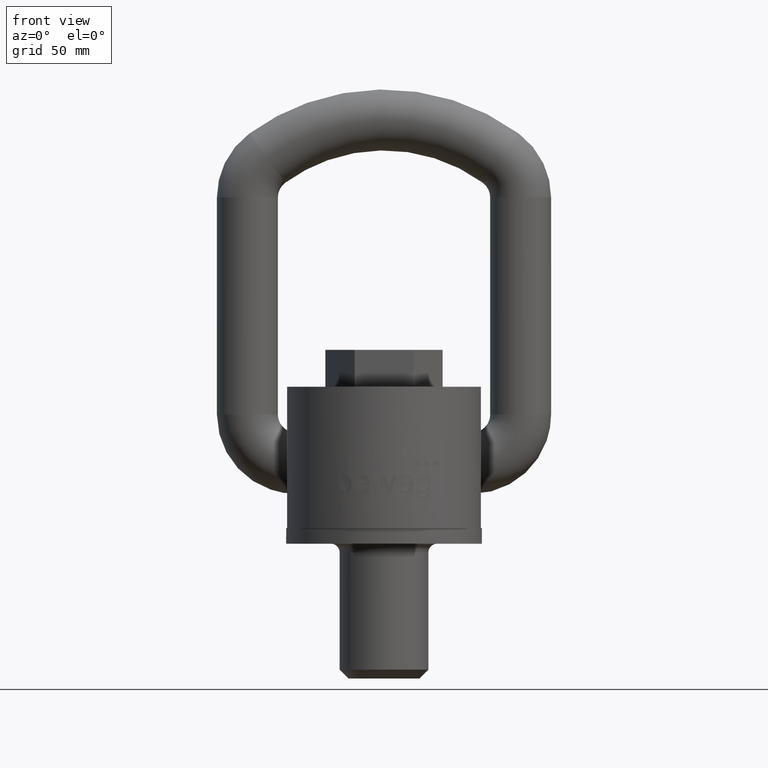
[diagram: clean part render]
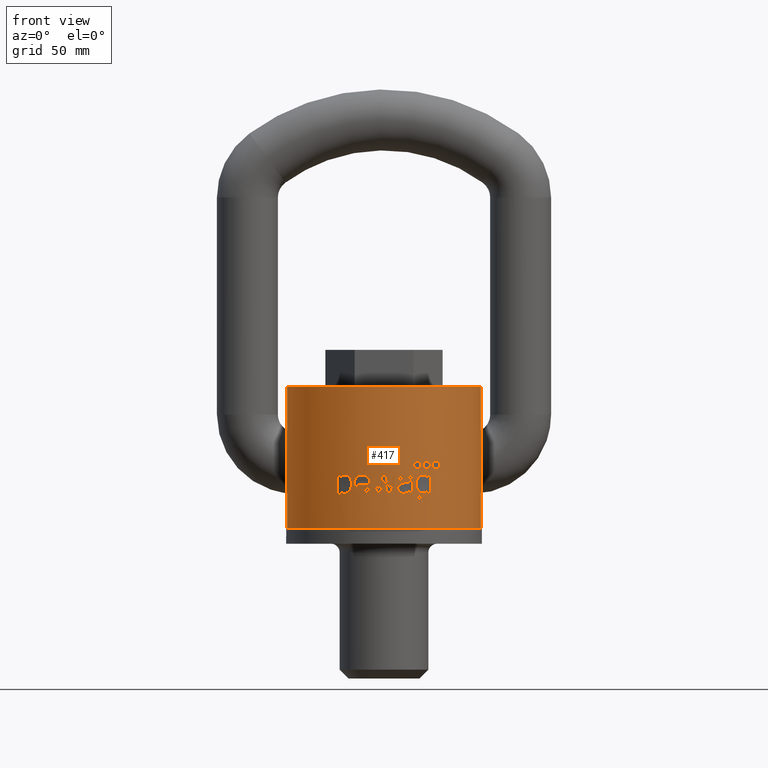
[diagram: same view with one face highlighted and labeled with its STEP entity id]
A machine part, front view. The second image highlights one B-rep face of the part: STEP entity #417.
In plain terms, the highlighted cylindrical surface (partial cylindrical patch) has radius 52.5 mm, axis along (0, -0, -1).
Its self-contained STEP definition (entity closure, byte-faithful):
#417=ADVANCED_FACE('',(#582,#583,#584,#585,#586,#587,#588,#589,#590),#551,
 .T.);
#551=CYLINDRICAL_SURFACE('',#2520,52.5);
#569=ELLIPSE('',#2495,52.9074304718792,52.5);
#570=ELLIPSE('',#2496,172.558000465431,52.5);
#571=ELLIPSE('',#2498,202.596774834767,52.5);
#572=ELLIPSE('',#2500,206.394196986981,52.5);
#573=ELLIPSE('',#2502,175.9850075065,52.5);
#574=ELLIPSE('',#2504,194.831448692737,52.5);
#575=ELLIPSE('',#2505,211.918340332556,52.5);
#576=ELLIPSE('',#2506,197.324263668669,52.5);
#577=ELLIPSE('',#2508,207.452381222408,52.5);
#578=ELLIPSE('',#2510,182.746897834467,52.5);
#579=ELLIPSE('',#2513,53.0938703991092,52.5);
#580=ELLIPSE('',#2514,52.9497851321274,52.5);
#581=ELLIPSE('',#2515,53.2237463379496,52.5);
#582=FACE_BOUND('',#639,.T.);
#583=FACE_BOUND('',#640,.T.);
#584=FACE_BOUND('',#641,.T.);
#585=FACE_BOUND('',#642,.T.);
#586=FACE_BOUND('',#643,.T.);
#587=FACE_BOUND('',#644,.T.);
#588=FACE_BOUND('',#645,.T.);
#589=FACE_BOUND('',#646,.T.);
#590=FACE_BOUND('',#647,.T.);
#639=EDGE_LOOP('',(#1155,#1156,#1157,#1158,#1159,#1160,#1161,#1162,#1163,
#1164));
#640=EDGE_LOOP('',(#1165,#1166,#1167,#1168,#1169,#1170,#1171,#1172,#1173));
#641=EDGE_LOOP('',(#1174,#1175,#1176,#1177,#1178,#1179,#1180,#1181,#1182,
#1183,#1184,#1185,#1186,#1187,#1188,#1189,#1190,#1191,#1192));
#642=EDGE_LOOP('',(#1193,#1194,#1195,#1196,#1197,#1198,#1199,#1200,#1201,
#1202,#1203,#1204,#1205,#1206,#1207,#1208,#1209));
#643=EDGE_LOOP('',(#1210,#1211,#1212,#1213,#1214,#1215,#1216,#1217,#1218,
#1219,#1220));
#644=EDGE_LOOP('',(#1221));
#645=EDGE_LOOP('',(#1222,#1223,#1224,#1225));
#646=EDGE_LOOP('',(#1226));
#647=EDGE_LOOP('',(#1227));
#805=LINE('',#3137,#937);
#806=LINE('',#3141,#938);
#807=LINE('',#3145,#939);
#808=LINE('',#3592,#940);
#809=LINE('',#3657,#941);
#810=LINE('',#3661,#942);
#937=VECTOR('',#2637,1.);
#938=VECTOR('',#2640,1.);
#939=VECTOR('',#2643,1.);
#940=VECTOR('',#2692,1.);
#941=VECTOR('',#2697,1.);
#942=VECTOR('',#2700,1.);
#1114=CIRCLE('',#2490,52.5);
#1115=CIRCLE('',#2491,52.5);
#1116=CIRCLE('',#2492,52.5);
#1117=CIRCLE('',#2493,52.5);
#1118=CIRCLE('',#2494,52.5);
#1119=CIRCLE('',#2497,52.5);
#1120=CIRCLE('',#2499,52.5);
#1121=CIRCLE('',#2501,52.5);
#1122=CIRCLE('',#2503,52.5);
#1123=CIRCLE('',#2507,52.5);
#1124=CIRCLE('',#2509,52.5);
#1125=CIRCLE('',#2511,52.5);
#1126=CIRCLE('',#2512,52.5);
#1127=CIRCLE('',#2516,52.5);
#1128=CIRCLE('',#2517,52.5);
#1129=CIRCLE('',#2518,52.5);
#1130=CIRCLE('',#2519,52.5);
#1155=ORIENTED_EDGE('',*,*,#2000,.F.);
#1156=ORIENTED_EDGE('',*,*,#2001,.F.);
#1157=ORIENTED_EDGE('',*,*,#2002,.F.);
#1158=ORIENTED_EDGE('',*,*,#2003,.F.);
#1159=ORIENTED_EDGE('',*,*,#2004,.F.);
#1160=ORIENTED_EDGE('',*,*,#2005,.F.);
#1161=ORIENTED_EDGE('',*,*,#2006,.F.);
#1162=ORIENTED_EDGE('',*,*,#2007,.F.);
#1163=ORIENTED_EDGE('',*,*,#2008,.F.);
#1164=ORIENTED_EDGE('',*,*,#2009,.F.);
#1165=ORIENTED_EDGE('',*,*,#2010,.F.);
#1166=ORIENTED_EDGE('',*,*,#2011,.F.);
#1167=ORIENTED_EDGE('',*,*,#2012,.F.);
#1168=ORIENTED_EDGE('',*,*,#2013,.F.);
#1169=ORIENTED_EDGE('',*,*,#2014,.F.);
#1170=ORIENTED_EDGE('',*,*,#2015,.F.);
#1171=ORIENTED_EDGE('',*,*,#2016,.F.);
#1172=ORIENTED_EDGE('',*,*,#2017,.F.);
#1173=ORIENTED_EDGE('',*,*,#2018,.F.);
#1174=ORIENTED_EDGE('',*,*,#2019,.F.);
#1175=ORIENTED_EDGE('',*,*,#2020,.F.);
#1176=ORIENTED_EDGE('',*,*,#2021,.F.);
#1177=ORIENTED_EDGE('',*,*,#2022,.F.);
#1178=ORIENTED_EDGE('',*,*,#2023,.F.);
#1179=ORIENTED_EDGE('',*,*,#2024,.F.);
#1180=ORIENTED_EDGE('',*,*,#2025,.F.);
#1181=ORIENTED_EDGE('',*,*,#2026,.F.);
#1182=ORIENTED_EDGE('',*,*,#2027,.F.);
#1183=ORIENTED_EDGE('',*,*,#2028,.F.);
#1184=ORIENTED_EDGE('',*,*,#2029,.F.);
#1185=ORIENTED_EDGE('',*,*,#2030,.F.);
#1186=ORIENTED_EDGE('',*,*,#2031,.F.);
#1187=ORIENTED_EDGE('',*,*,#2032,.F.);
#1188=ORIENTED_EDGE('',*,*,#2033,.F.);
#1189=ORIENTED_EDGE('',*,*,#2034,.F.);
#1190=ORIENTED_EDGE('',*,*,#2035,.F.);
#1191=ORIENTED_EDGE('',*,*,#2036,.F.);
#1192=ORIENTED_EDGE('',*,*,#2037,.F.);
#1193=ORIENTED_EDGE('',*,*,#2038,.F.);
#1194=ORIENTED_EDGE('',*,*,#2039,.F.);
#1195=ORIENTED_EDGE('',*,*,#2040,.F.);
#1196=ORIENTED_EDGE('',*,*,#2041,.F.);
#1197=ORIENTED_EDGE('',*,*,#2042,.F.);
#1198=ORIENTED_EDGE('',*,*,#2043,.F.);
#1199=ORIENTED_EDGE('',*,*,#2044,.F.);
#1200=ORIENTED_EDGE('',*,*,#2045,.F.);
#1201=ORIENTED_EDGE('',*,*,#2046,.F.);
#1202=ORIENTED_EDGE('',*,*,#2047,.F.);
#1203=ORIENTED_EDGE('',*,*,#2048,.F.);
#1204=ORIENTED_EDGE('',*,*,#2049,.F.);
#1205=ORIENTED_EDGE('',*,*,#2050,.F.);
#1206=ORIENTED_EDGE('',*,*,#2051,.F.);
#1207=ORIENTED_EDGE('',*,*,#2052,.F.);
#1208=ORIENTED_EDGE('',*,*,#2053,.F.);
#1209=ORIENTED_EDGE('',*,*,#2054,.F.);
#1210=ORIENTED_EDGE('',*,*,#2055,.F.);
#1211=ORIENTED_EDGE('',*,*,#2056,.F.);
#1212=ORIENTED_EDGE('',*,*,#2057,.F.);
#1213=ORIENTED_EDGE('',*,*,#2058,.F.);
#1214=ORIENTED_EDGE('',*,*,#2059,.F.);
#1215=ORIENTED_EDGE('',*,*,#2060,.F.);
#1216=ORIENTED_EDGE('',*,*,#2061,.F.);
#1217=ORIENTED_EDGE('',*,*,#2062,.F.);
#1218=ORIENTED_EDGE('',*,*,#2063,.F.);
#1219=ORIENTED_EDGE('',*,*,#2064,.F.);
#1220=ORIENTED_EDGE('',*,*,#2065,.F.);
#1221=ORIENTED_EDGE('',*,*,#2066,.T.);
#1222=ORIENTED_EDGE('',*,*,#2067,.F.);
#1223=ORIENTED_EDGE('',*,*,#2068,.F.);
#1224=ORIENTED_EDGE('',*,*,#2069,.F.);
#1225=ORIENTED_EDGE('',*,*,#2070,.F.);
#1226=ORIENTED_EDGE('',*,*,#2071,.T.);
#1227=ORIENTED_EDGE('',*,*,#2072,.T.);
#1785=VERTEX_POINT('',#3109);
#1786=VERTEX_POINT('',#3110);
#1787=VERTEX_POINT('',#3121);
#1788=VERTEX_POINT('',#3134);
#1789=VERTEX_POINT('',#3136);
#1790=VERTEX_POINT('',#3138);
#1791=VERTEX_POINT('',#3140);
#1792=VERTEX_POINT('',#3142);
#1793=VERTEX_POINT('',#3144);
#1794=VERTEX_POINT('',#3146);
#1795=VERTEX_POINT('',#3149);
#1796=VERTEX_POINT('',#3150);
#1797=VERTEX_POINT('',#3161);
#1798=VERTEX_POINT('',#3178);
#1799=VERTEX_POINT('',#3189);
#1800=VERTEX_POINT('',#3191);
#1801=VERTEX_POINT('',#3202);
#1802=VERTEX_POINT('',#3209);
#1803=VERTEX_POINT('',#3222);
#1804=VERTEX_POINT('',#3234);
#1805=VERTEX_POINT('',#3235);
#1806=VERTEX_POINT('',#3237);
#1807=VERTEX_POINT('',#3239);
#1808=VERTEX_POINT('',#3304);
#1809=VERTEX_POINT('',#3315);
#1810=VERTEX_POINT('',#3317);
#1811=VERTEX_POINT('',#3319);
#1812=VERTEX_POINT('',#3321);
#1813=VERTEX_POINT('',#3323);
#1814=VERTEX_POINT('',#3325);
#1815=VERTEX_POINT('',#3327);
#1816=VERTEX_POINT('',#3329);
#1817=VERTEX_POINT('',#3331);
#1818=VERTEX_POINT('',#3333);
#1819=VERTEX_POINT('',#3335);
#1820=VERTEX_POINT('',#3346);
#1821=VERTEX_POINT('',#3348);
#1822=VERTEX_POINT('',#3350);
#1823=VERTEX_POINT('',#3353);
#1824=VERTEX_POINT('',#3354);
#1825=VERTEX_POINT('',#3365);
#1826=VERTEX_POINT('',#3376);
#1827=VERTEX_POINT('',#3387);
#1828=VERTEX_POINT('',#3389);
#1829=VERTEX_POINT('',#3400);
#1830=VERTEX_POINT('',#3411);
#1831=VERTEX_POINT('',#3422);
#1832=VERTEX_POINT('',#3433);
#1833=VERTEX_POINT('',#3444);
#1834=VERTEX_POINT('',#3455);
#1835=VERTEX_POINT('',#3457);
#1836=VERTEX_POINT('',#3468);
#1837=VERTEX_POINT('',#3477);
#1838=VERTEX_POINT('',#3488);
#1839=VERTEX_POINT('',#3495);
#1840=VERTEX_POINT('',#3514);
#1841=VERTEX_POINT('',#3515);
#1842=VERTEX_POINT('',#3522);
#1843=VERTEX_POINT('',#3536);
#1844=VERTEX_POINT('',#3538);
#1845=VERTEX_POINT('',#3549);
#1846=VERTEX_POINT('',#3563);
#1847=VERTEX_POINT('',#3570);
#1848=VERTEX_POINT('',#3589);
#1849=VERTEX_POINT('',#3591);
#1850=VERTEX_POINT('',#3593);
#1851=VERTEX_POINT('',#3653);
#1852=VERTEX_POINT('',#3655);
#1853=VERTEX_POINT('',#3656);
#1854=VERTEX_POINT('',#3658);
#1855=VERTEX_POINT('',#3660);
#1856=VERTEX_POINT('',#3720);
#1857=VERTEX_POINT('',#3779);
#2000=EDGE_CURVE('',#1785,#1786,#2315,.T.);
#2001=EDGE_CURVE('',#1787,#1785,#2316,.T.);
#2002=EDGE_CURVE('',#1788,#1787,#2317,.T.);
#2003=EDGE_CURVE('',#1789,#1788,#1114,.T.);
#2004=EDGE_CURVE('',#1790,#1789,#805,.T.);
#2005=EDGE_CURVE('',#1791,#1790,#1115,.T.);
#2006=EDGE_CURVE('',#1792,#1791,#806,.T.);
#2007=EDGE_CURVE('',#1793,#1792,#1116,.T.);
#2008=EDGE_CURVE('',#1794,#1793,#807,.T.);
#2009=EDGE_CURVE('',#1786,#1794,#1117,.T.);
#2010=EDGE_CURVE('',#1795,#1796,#1118,.T.);
#2011=EDGE_CURVE('',#1797,#1795,#2318,.T.);
#2012=EDGE_CURVE('',#1798,#1797,#2319,.T.);
#2013=EDGE_CURVE('',#1799,#1798,#2320,.T.);
#2014=EDGE_CURVE('',#1800,#1799,#569,.T.);
#2015=EDGE_CURVE('',#1801,#1800,#2321,.T.);
#2016=EDGE_CURVE('',#1802,#1801,#2322,.T.);
#2017=EDGE_CURVE('',#1803,#1802,#2323,.T.);
#2018=EDGE_CURVE('',#1796,#1803,#2324,.T.);
#2019=EDGE_CURVE('',#1804,#1805,#570,.T.);
#2020=EDGE_CURVE('',#1806,#1804,#1119,.T.);
#2021=EDGE_CURVE('',#1807,#1806,#571,.T.);
#2022=EDGE_CURVE('',#1808,#1807,#2325,.T.);
#2023=EDGE_CURVE('',#1809,#1808,#2326,.T.);
#2024=EDGE_CURVE('',#1810,#1809,#1120,.T.);
#2025=EDGE_CURVE('',#1811,#1810,#572,.T.);
#2026=EDGE_CURVE('',#1812,#1811,#1121,.T.);
#2027=EDGE_CURVE('',#1813,#1812,#573,.T.);
#2028=EDGE_CURVE('',#1814,#1813,#1122,.T.);
#2029=EDGE_CURVE('',#1815,#1814,#574,.T.);
#2030=EDGE_CURVE('',#1816,#1815,#575,.T.);
#2031=EDGE_CURVE('',#1817,#1816,#576,.T.);
#2032=EDGE_CURVE('',#1818,#1817,#1123,.T.);
#2033=EDGE_CURVE('',#1819,#1818,#577,.T.);
#2034=EDGE_CURVE('',#1820,#1819,#2327,.T.);
#2035=EDGE_CURVE('',#1821,#1820,#1124,.T.);
#2036=EDGE_CURVE('',#1822,#1821,#578,.T.);
#2037=EDGE_CURVE('',#1805,#1822,#1125,.T.);
#2038=EDGE_CURVE('',#1823,#1824,#1126,.T.);
#2039=EDGE_CURVE('',#1825,#1823,#2328,.T.);
#2040=EDGE_CURVE('',#1826,#1825,#2329,.T.);
#2041=EDGE_CURVE('',#1827,#1826,#2330,.T.);
#2042=EDGE_CURVE('',#1828,#1827,#579,.T.);
#2043=EDGE_CURVE('',#1829,#1828,#2331,.T.);
#2044=EDGE_CURVE('',#1830,#1829,#2332,.T.);
#2045=EDGE_CURVE('',#1831,#1830,#2333,.T.);
#2046=EDGE_CURVE('',#1832,#1831,#2334,.T.);
#2047=EDGE_CURVE('',#1833,#1832,#2335,.T.);
#2048=EDGE_CURVE('',#1834,#1833,#2336,.T.);
#2049=EDGE_CURVE('',#1835,#1834,#580,.T.);
#2050=EDGE_CURVE('',#1836,#1835,#2337,.T.);
#2051=EDGE_CURVE('',#1837,#1836,#2338,.T.);
#2052=EDGE_CURVE('',#1838,#1837,#2339,.T.);
#2053=EDGE_CURVE('',#1839,#1838,#2340,.T.);
#2054=EDGE_CURVE('',#1824,#1839,#2341,.T.);
#2055=EDGE_CURVE('',#1840,#1841,#2342,.T.);
#2056=EDGE_CURVE('',#1842,#1840,#2343,.T.);
#2057=EDGE_CURVE('',#1843,#1842,#2344,.T.);
#2058=EDGE_CURVE('',#1844,#1843,#581,.T.);
#2059=EDGE_CURVE('',#1845,#1844,#2345,.T.);
#2060=EDGE_CURVE('',#1846,#1845,#2346,.T.);
#2061=EDGE_CURVE('',#1847,#1846,#2347,.T.);
#2062=EDGE_CURVE('',#1848,#1847,#2348,.T.);
#2063=EDGE_CURVE('',#1849,#1848,#1127,.T.);
#2064=EDGE_CURVE('',#1850,#1849,#808,.T.);
#2065=EDGE_CURVE('',#1841,#1850,#1128,.T.);
#2066=EDGE_CURVE('',#1851,#1851,#2349,.T.);
#2067=EDGE_CURVE('',#1852,#1853,#1129,.T.);
#2068=EDGE_CURVE('',#1854,#1852,#809,.T.);
#2069=EDGE_CURVE('',#1855,#1854,#1130,.T.);
#2070=EDGE_CURVE('',#1853,#1855,#810,.T.);
#2071=EDGE_CURVE('',#1856,#1856,#2350,.T.);
#2072=EDGE_CURVE('',#1857,#1857,#2351,.T.);
#2315=B_SPLINE_CURVE_WITH_KNOTS('',3,(#3099,#3100,#3101,#3102,#3103,#3104,
#3105,#3106,#3107,#3108),.UNSPECIFIED.,.F.,.F.,(4,3,3,4),(0.,0.391657797747273,
0.694208532104595,1.),.UNSPECIFIED.);
#2316=B_SPLINE_CURVE_WITH_KNOTS('',3,(#3111,#3112,#3113,#3114,#3115,#3116,
#3117,#3118,#3119,#3120),.UNSPECIFIED.,.F.,.F.,(4,3,3,4),(0.,0.352238037569722,
0.705837311240703,1.),.UNSPECIFIED.);
#2317=B_SPLINE_CURVE_WITH_KNOTS('',3,(#3122,#3123,#3124,#3125,#3126,#3127,
#3128,#3129,#3130,#3131,#3132,#3133),.UNSPECIFIED.,.F.,.F.,(4,2,2,2,2,4),
(0.,0.125,0.250000000000001,0.5,0.75,1.),.UNSPECIFIED.);
#2318=B_SPLINE_CURVE_WITH_KNOTS('',3,(#3151,#3152,#3153,#3154,#3155,#3156,
#3157,#3158,#3159,#3160),.UNSPECIFIED.,.F.,.F.,(4,3,3,4),(0.,0.247240170800069,
0.663841143719333,1.),.UNSPECIFIED.);
#2319=B_SPLINE_CURVE_WITH_KNOTS('',3,(#3162,#3163,#3164,#3165,#3166,#3167,
#3168,#3169,#3170,#3171,#3172,#3173,#3174,#3175,#3176,#3177),
 .UNSPECIFIED.,.F.,.F.,(4,3,3,3,3,4),(0.,0.198766169573462,0.39563469344666,
0.634969042156057,0.906976755551046,1.),.UNSPECIFIED.);
#2320=B_SPLINE_CURVE_WITH_KNOTS('',3,(#3179,#3180,#3181,#3182,#3183,#3184,
#3185,#3186,#3187,#3188),.UNSPECIFIED.,.F.,.F.,(4,3,3,4),(0.,0.291582744666722,
0.583827807706857,1.),.UNSPECIFIED.);
#2321=B_SPLINE_CURVE_WITH_KNOTS('',3,(#3192,#3193,#3194,#3195,#3196,#3197,
#3198,#3199,#3200,#3201),.UNSPECIFIED.,.F.,.F.,(4,3,3,4),(0.,0.279743626133195,
0.746666449623447,1.),.UNSPECIFIED.);
#2322=B_SPLINE_CURVE_WITH_KNOTS('',3,(#3203,#3204,#3205,#3206,#3207,#3208),
 .UNSPECIFIED.,.F.,.F.,(4,2,4),(0.,0.5,1.),.UNSPECIFIED.);
#2323=B_SPLINE_CURVE_WITH_KNOTS('',3,(#3210,#3211,#3212,#3213,#3214,#3215,
#3216,#3217,#3218,#3219,#3220,#3221),.UNSPECIFIED.,.F.,.F.,(4,2,2,2,2,4),
(0.,0.125,0.25,0.499999999999999,0.75,1.),.UNSPECIFIED.);
#2324=B_SPLINE_CURVE_WITH_KNOTS('',3,(#3223,#3224,#3225,#3226,#3227,#3228,
#3229,#3230,#3231,#3232),.UNSPECIFIED.,.F.,.F.,(4,3,3,4),(0.,0.326762048751423,
0.655781069521528,1.),.UNSPECIFIED.);
#2325=B_SPLINE_CURVE_WITH_KNOTS('',3,(#3240,#3241,#3242,#3243,#3244,#3245,
#3246,#3247,#3248,#3249,#3250,#3251,#3252,#3253,#3254,#3255,#3256,#3257,
#3258,#3259,#3260,#3261,#3262,#3263,#3264,#3265,#3266,#3267,#3268,#3269,
#3270,#3271,#3272,#3273,#3274,#3275,#3276,#3277,#3278,#3279,#3280,#3281,
#3282,#3283,#3284,#3285,#3286,#3287,#3288,#3289,#3290,#3291,#3292,#3293,
#3294,#3295,#3296,#3297,#3298,#3299,#3300,#3301,#3302,#3303),
 .UNSPECIFIED.,.F.,.F.,(4,3,3,3,3,3,3,3,3,3,3,3,3,3,3,3,3,3,3,3,3,4),(0.,
0.499553315865317,0.749371457656778,0.834029702781509,0.889946161526297,
0.926899979168894,0.951339487482488,0.967517619891249,0.978239997821739,
0.985357925747822,0.990093337357624,0.99325301181144,0.995369807495447,
0.99679578552025,0.997763616068196,0.998427273316663,0.998888982307846,
0.999371387633675,0.999590041183286,0.999773233074735,0.999908554321398,
1.),.UNSPECIFIED.);
#2326=B_SPLINE_CURVE_WITH_KNOTS('',3,(#3305,#3306,#3307,#3308,#3309,#3310,
#3311,#3312,#3313,#3314),.UNSPECIFIED.,.F.,.F.,(4,3,3,4),(0.,0.133710786362348,
0.6622594282057,1.),.UNSPECIFIED.);
#2327=B_SPLINE_CURVE_WITH_KNOTS('',3,(#3336,#3337,#3338,#3339,#3340,#3341,
#3342,#3343,#3344,#3345),.UNSPECIFIED.,.F.,.F.,(4,3,3,4),(0.,0.284451124598489,
0.642221045653069,1.),.UNSPECIFIED.);
#2328=B_SPLINE_CURVE_WITH_KNOTS('',3,(#3355,#3356,#3357,#3358,#3359,#3360,
#3361,#3362,#3363,#3364),.UNSPECIFIED.,.F.,.F.,(4,3,3,4),(0.,0.298107772476783,
0.596459384136428,1.),.UNSPECIFIED.);
#2329=B_SPLINE_CURVE_WITH_KNOTS('',3,(#3366,#3367,#3368,#3369,#3370,#3371,
#3372,#3373,#3374,#3375),.UNSPECIFIED.,.F.,.F.,(4,2,2,2,4),(0.,0.25,0.5,
0.75,1.),.UNSPECIFIED.);
#2330=B_SPLINE_CURVE_WITH_KNOTS('',3,(#3377,#3378,#3379,#3380,#3381,#3382,
#3383,#3384,#3385,#3386),.UNSPECIFIED.,.F.,.F.,(4,3,3,4),(0.,0.336609162967316,
0.658853350552496,1.),.UNSPECIFIED.);
#2331=B_SPLINE_CURVE_WITH_KNOTS('',3,(#3390,#3391,#3392,#3393,#3394,#3395,
#3396,#3397,#3398,#3399),.UNSPECIFIED.,.F.,.F.,(4,3,3,4),(0.,0.29661276827301,
0.593035536686832,1.),.UNSPECIFIED.);
#2332=B_SPLINE_CURVE_WITH_KNOTS('',3,(#3401,#3402,#3403,#3404,#3405,#3406,
#3407,#3408,#3409,#3410),.UNSPECIFIED.,.F.,.F.,(4,3,3,4),(0.,0.354196373045428,
0.676989757518119,1.),.UNSPECIFIED.);
#2333=B_SPLINE_CURVE_WITH_KNOTS('',3,(#3412,#3413,#3414,#3415,#3416,#3417,
#3418,#3419,#3420,#3421),.UNSPECIFIED.,.F.,.F.,(4,3,3,4),(0.,0.284062316983172,
0.568435846295681,1.),.UNSPECIFIED.);
#2334=B_SPLINE_CURVE_WITH_KNOTS('',3,(#3423,#3424,#3425,#3426,#3427,#3428,
#3429,#3430,#3431,#3432),.UNSPECIFIED.,.F.,.F.,(4,3,3,4),(0.,0.294807138526077,
0.590298925498013,1.),.UNSPECIFIED.);
#2335=B_SPLINE_CURVE_WITH_KNOTS('',3,(#3434,#3435,#3436,#3437,#3438,#3439,
#3440,#3441,#3442,#3443),.UNSPECIFIED.,.F.,.F.,(4,3,3,4),(0.,0.278855867610482,
0.735722394139003,1.),.UNSPECIFIED.);
#2336=B_SPLINE_CURVE_WITH_KNOTS('',3,(#3445,#3446,#3447,#3448,#3449,#3450,
#3451,#3452,#3453,#3454),.UNSPECIFIED.,.F.,.F.,(4,3,3,4),(0.,0.324752376652679,
0.768673925460942,1.),.UNSPECIFIED.);
#2337=B_SPLINE_CURVE_WITH_KNOTS('',3,(#3458,#3459,#3460,#3461,#3462,#3463,
#3464,#3465,#3466,#3467),.UNSPECIFIED.,.F.,.F.,(4,3,3,4),(0.,0.276746719904197,
0.659623398338811,1.),.UNSPECIFIED.);
#2338=B_SPLINE_CURVE_WITH_KNOTS('',3,(#3469,#3470,#3471,#3472,#3473,#3474,
#3475,#3476),.UNSPECIFIED.,.F.,.F.,(4,2,2,4),(0.,0.25,0.499999999999999,
1.),.UNSPECIFIED.);
#2339=B_SPLINE_CURVE_WITH_KNOTS('',3,(#3478,#3479,#3480,#3481,#3482,#3483,
#3484,#3485,#3486,#3487),.UNSPECIFIED.,.F.,.F.,(4,3,3,4),(0.,0.260453290197951,
0.65111740460325,1.),.UNSPECIFIED.);
#2340=B_SPLINE_CURVE_WITH_KNOTS('',3,(#3489,#3490,#3491,#3492,#3493,#3494),
 .UNSPECIFIED.,.F.,.F.,(4,2,4),(0.,0.5,1.),.UNSPECIFIED.);
#2341=B_SPLINE_CURVE_WITH_KNOTS('',3,(#3496,#3497,#3498,#3499,#3500,#3501,
#3502,#3503,#3504,#3505),.UNSPECIFIED.,.F.,.F.,(4,3,3,4),(0.,0.264702455054215,
0.529532191004731,1.),.UNSPECIFIED.);
#2342=B_SPLINE_CURVE_WITH_KNOTS('',3,(#3506,#3507,#3508,#3509,#3510,#3511,
#3512,#3513),.UNSPECIFIED.,.F.,.F.,(4,2,2,4),(0.,0.25,0.5,1.),
 .UNSPECIFIED.);
#2343=B_SPLINE_CURVE_WITH_KNOTS('',3,(#3516,#3517,#3518,#3519,#3520,#3521),
 .UNSPECIFIED.,.F.,.F.,(4,2,4),(0.,0.5,1.),.UNSPECIFIED.);
#2344=B_SPLINE_CURVE_WITH_KNOTS('',3,(#3523,#3524,#3525,#3526,#3527,#3528,
#3529,#3530,#3531,#3532,#3533,#3534,#3535),.UNSPECIFIED.,.F.,.F.,(4,3,3,
3,4),(0.,0.401043475483811,0.633320924333604,0.866741825314156,1.),
 .UNSPECIFIED.);
#2345=B_SPLINE_CURVE_WITH_KNOTS('',3,(#3539,#3540,#3541,#3542,#3543,#3544,
#3545,#3546,#3547,#3548),.UNSPECIFIED.,.F.,.F.,(4,3,3,4),(0.,0.256741034385977,
0.614734922507131,1.),.UNSPECIFIED.);
#2346=B_SPLINE_CURVE_WITH_KNOTS('',3,(#3550,#3551,#3552,#3553,#3554,#3555,
#3556,#3557,#3558,#3559,#3560,#3561,#3562),.UNSPECIFIED.,.F.,.F.,(4,3,3,
3,4),(0.,0.199350171071207,0.498071015390928,0.843112996930529,1.),
 .UNSPECIFIED.);
#2347=B_SPLINE_CURVE_WITH_KNOTS('',3,(#3564,#3565,#3566,#3567,#3568,#3569),
 .UNSPECIFIED.,.F.,.F.,(4,2,4),(0.,0.5,1.),.UNSPECIFIED.);
#2348=B_SPLINE_CURVE_WITH_KNOTS('',3,(#3571,#3572,#3573,#3574,#3575,#3576,
#3577,#3578,#3579,#3580,#3581,#3582,#3583,#3584,#3585,#3586,#3587,#3588),
 .UNSPECIFIED.,.F.,.F.,(4,2,2,2,2,2,2,2,4),(0.,0.125,0.25,0.375,0.5,0.625,
0.75,0.875,1.),.UNSPECIFIED.);
#2349=B_SPLINE_CURVE_WITH_KNOTS('',3,(#3595,#3596,#3597,#3598,#3599,#3600,
#3601,#3602,#3603,#3604,#3605,#3606,#3607,#3608,#3609,#3610,#3611,#3612,
#3613,#3614,#3615,#3616,#3617,#3618,#3619,#3620,#3621,#3622,#3623,#3624,
#3625,#3626,#3627,#3628,#3629,#3630,#3631,#3632,#3633,#3634,#3635,#3636,
#3637,#3638,#3639,#3640,#3641,#3642,#3643,#3644,#3645,#3646,#3647,#3648,
#3649,#3650,#3651,#3652),.UNSPECIFIED.,.T.,.F.,(1,3,3,3,3,3,3,3,3,3,3,3,
3,3,3,3,3,3,3,3,3,1),(-0.0367073868415182,0.,0.0609914840100625,0.122231249399368,
0.179301292083765,0.230755369736954,0.278391120314942,0.324878189726589,
0.372681240418362,0.423792491215209,0.479527479500674,0.539959743675108,
0.603004205015672,0.664124531326778,0.718757726555895,0.766536662648828,
0.811206380762681,0.857057487616174,0.907225610016424,0.963292613158482,
1.,1.06099148401006),.UNSPECIFIED.);
#2350=B_SPLINE_CURVE_WITH_KNOTS('',3,(#3662,#3663,#3664,#3665,#3666,#3667,
#3668,#3669,#3670,#3671,#3672,#3673,#3674,#3675,#3676,#3677,#3678,#3679,
#3680,#3681,#3682,#3683,#3684,#3685,#3686,#3687,#3688,#3689,#3690,#3691,
#3692,#3693,#3694,#3695,#3696,#3697,#3698,#3699,#3700,#3701,#3702,#3703,
#3704,#3705,#3706,#3707,#3708,#3709,#3710,#3711,#3712,#3713,#3714,#3715,
#3716,#3717,#3718,#3719),.UNSPECIFIED.,.T.,.F.,(1,3,3,3,3,3,3,3,3,3,3,3,
3,3,3,3,3,3,3,3,3,1),(-0.0367197482967928,0.,0.057624570693958,0.115380338516388,
0.170999496159536,0.22356569032424,0.273920264410147,0.323453498183324,
0.373593188642526,0.425570256117129,0.480210313262633,0.537583476956382,
0.596550106951982,0.654679211305302,0.709389457177727,0.759995746809845,
0.808271178746387,0.856951409014801,0.908279432979368,0.963280251703207,
1.,1.05762457069396),.UNSPECIFIED.);
#2351=B_SPLINE_CURVE_WITH_KNOTS('',3,(#3721,#3722,#3723,#3724,#3725,#3726,
#3727,#3728,#3729,#3730,#3731,#3732,#3733,#3734,#3735,#3736,#3737,#3738,
#3739,#3740,#3741,#3742,#3743,#3744,#3745,#3746,#3747,#3748,#3749,#3750,
#3751,#3752,#3753,#3754,#3755,#3756,#3757,#3758,#3759,#3760,#3761,#3762,
#3763,#3764,#3765,#3766,#3767,#3768,#3769,#3770,#3771,#3772,#3773,#3774,
#3775,#3776,#3777,#3778),.UNSPECIFIED.,.T.,.F.,(1,3,3,3,3,3,3,3,3,3,3,3,
3,3,3,3,3,3,3,3,3,1),(-0.065995406742674,0.,0.0748415571720553,0.141559223989638,
0.189406139175088,0.237532672015933,0.28131226716205,0.323847856577255,
0.368697963810671,0.418673756299005,0.475805103754143,0.540469776596686,
0.609516497803679,0.662909236118808,0.707889954346456,0.753174917817908,
0.793903464076126,0.834776206969873,0.880423710865826,0.934004593257326,
1.,1.07484155717206),.UNSPECIFIED.);
#2490=AXIS2_PLACEMENT_3D('',#3135,#2635,#2636);
#2491=AXIS2_PLACEMENT_3D('',#3139,#2638,#2639);
#2492=AXIS2_PLACEMENT_3D('',#3143,#2641,#2642);
#2493=AXIS2_PLACEMENT_3D('',#3147,#2644,#2645);
#2494=AXIS2_PLACEMENT_3D('',#3148,#2646,#2647);
#2495=AXIS2_PLACEMENT_3D('',#3190,#2648,#2649);
#2496=AXIS2_PLACEMENT_3D('',#3233,#2650,#2651);
#2497=AXIS2_PLACEMENT_3D('',#3236,#2652,#2653);
#2498=AXIS2_PLACEMENT_3D('',#3238,#2654,#2655);
#2499=AXIS2_PLACEMENT_3D('',#3316,#2656,#2657);
#2500=AXIS2_PLACEMENT_3D('',#3318,#2658,#2659);
#2501=AXIS2_PLACEMENT_3D('',#3320,#2660,#2661);
#2502=AXIS2_PLACEMENT_3D('',#3322,#2662,#2663);
#2503=AXIS2_PLACEMENT_3D('',#3324,#2664,#2665);
#2504=AXIS2_PLACEMENT_3D('',#3326,#2666,#2667);
#2505=AXIS2_PLACEMENT_3D('',#3328,#2668,#2669);
#2506=AXIS2_PLACEMENT_3D('',#3330,#2670,#2671);
#2507=AXIS2_PLACEMENT_3D('',#3332,#2672,#2673);
#2508=AXIS2_PLACEMENT_3D('',#3334,#2674,#2675);
#2509=AXIS2_PLACEMENT_3D('',#3347,#2676,#2677);
#2510=AXIS2_PLACEMENT_3D('',#3349,#2678,#2679);
#2511=AXIS2_PLACEMENT_3D('',#3351,#2680,#2681);
#2512=AXIS2_PLACEMENT_3D('',#3352,#2682,#2683);
#2513=AXIS2_PLACEMENT_3D('',#3388,#2684,#2685);
#2514=AXIS2_PLACEMENT_3D('',#3456,#2686,#2687);
#2515=AXIS2_PLACEMENT_3D('',#3537,#2688,#2689);
#2516=AXIS2_PLACEMENT_3D('',#3590,#2690,#2691);
#2517=AXIS2_PLACEMENT_3D('',#3594,#2693,#2694);
#2518=AXIS2_PLACEMENT_3D('',#3654,#2695,#2696);
#2519=AXIS2_PLACEMENT_3D('',#3659,#2698,#2699);
#2520=AXIS2_PLACEMENT_3D('',#3780,#2701,#2702);
#2635=DIRECTION('',(0.,0.,1.));
#2636=DIRECTION('',(-1.,0.,0.));
#2637=DIRECTION('',(0.,3.62817981903646E-16,1.));
#2638=DIRECTION('',(0.,0.,1.));
#2639=DIRECTION('',(-1.,0.,0.));
#2640=DIRECTION('',(0.,-3.62817981903646E-16,-1.));
#2641=DIRECTION('',(0.,0.,-1.));
#2642=DIRECTION('',(1.,0.,0.));
#2643=DIRECTION('',(0.,3.62817981903646E-16,1.));
#2644=DIRECTION('',(1.0135024756664E-13,0.,-1.));
#2645=DIRECTION('',(1.,0.,1.01373935700892E-13));
#2646=DIRECTION('',(0.,0.,1.));
#2647=DIRECTION('',(-1.,0.,0.));
#2648=DIRECTION('',(-0.123864170013731,4.93038065763132E-32,-0.992299182397532));
#2649=DIRECTION('',(0.992299182397532,-2.92916007803892E-15,-0.123864170013731));
#2650=DIRECTION('',(-0.952593648183112,0.,0.304245528218887));
#2651=DIRECTION('',(-0.304245528218887,-3.80873820222979E-16,-0.952593648183112));
#2652=DIRECTION('',(0.,0.,1.));
#2653=DIRECTION('',(-1.,0.,0.));
#2654=DIRECTION('',(0.965840998800877,0.,0.259135418334362));
#2655=DIRECTION('',(0.259135418334362,-3.75649804009248E-16,-0.965840998800877));
#2656=DIRECTION('',(0.,0.,1.));
#2657=DIRECTION('',(-1.,0.,0.));
#2658=DIRECTION('',(-0.96710760287855,0.,0.254367616756742));
#2659=DIRECTION('',(-0.254367616756742,-3.75157821967003E-16,-0.96710760287855));
#2660=DIRECTION('',(0.,0.,1.));
#2661=DIRECTION('',(-1.,0.,0.));
#2662=DIRECTION('',(0.954465641275027,1.23259516440783E-32,0.298320866895784));
#2663=DIRECTION('',(0.298320866895784,-3.80126812547148E-16,-0.954465641275027));
#2664=DIRECTION('',(0.,0.,-1.));
#2665=DIRECTION('',(1.,0.,0.));
#2666=DIRECTION('',(-0.963010551756508,0.,-0.269463684391098));
#2667=DIRECTION('',(0.269463684391098,-3.76753900818506E-16,-0.963010551756508));
#2668=DIRECTION('',(0.968827338219047,0.,-0.24773693450795));
#2669=DIRECTION('',(-0.24773693450795,-3.7449189096026E-16,-0.968827338219047));
#2670=DIRECTION('',(0.963956601090742,-1.23259516440783E-32,-0.266059525696007));
#2671=DIRECTION('',(-0.266059525696007,-3.76384145814353E-16,-0.963956601090742));
#2672=DIRECTION('',(0.,0.,-1.));
#2673=DIRECTION('',(1.,0.,0.));
#2674=DIRECTION('',(-0.967447937590639,0.,-0.25307012477102));
#2675=DIRECTION('',(0.25307012477102,-3.75025846669557E-16,-0.967447937590639));
#2676=DIRECTION('',(0.,0.,-1.));
#2677=DIRECTION('',(1.,0.,0.));
#2678=DIRECTION('',(0.957845874951683,1.23259516440783E-32,-0.287282578375447));
#2679=DIRECTION('',(-0.287282578375447,-3.78785346778204E-16,-0.957845874951683));
#2680=DIRECTION('',(0.,0.,-1.));
#2681=DIRECTION('',(1.,0.,0.));
#2682=DIRECTION('',(0.,0.,1.));
#2683=DIRECTION('',(-1.,0.,0.));
#2684=DIRECTION('',(0.149149158822097,-4.93038065763132E-32,-0.988814708842188));
#2685=DIRECTION('',(-0.988814708842188,-2.43258483500004E-15,-0.149149158822097));
#2686=DIRECTION('',(0.130065224599901,0.,0.991505439899236));
#2687=DIRECTION('',(0.991505439899236,-2.78950797970576E-15,-0.130065224599901));
#2688=DIRECTION('',(-0.164351632031852,0.,-0.986401815209434));
#2689=DIRECTION('',(0.986401815209434,-2.20757151856776E-15,-0.164351632031852));
#2690=DIRECTION('',(-1.01299546985865E-13,0.,-1.));
#2691=DIRECTION('',(1.,0.,-1.01307850997046E-13));
#2692=DIRECTION('',(0.,-3.62817981903646E-16,-1.));
#2693=DIRECTION('',(0.,0.,-1.));
#2694=DIRECTION('',(1.,0.,0.));
#2695=DIRECTION('',(0.,1.39066760246747E-16,-1.));
#2696=DIRECTION('',(0.,-1.,-1.39066760246747E-16));
#2697=DIRECTION('',(0.,-3.62817981903646E-16,-1.));
#2698=DIRECTION('',(0.,0.,1.));
#2699=DIRECTION('',(-1.,0.,0.));
#2700=DIRECTION('',(0.,3.62817981903646E-16,1.));
#2701=DIRECTION('',(0.,-3.62817981903646E-16,-1.));
#2702=DIRECTION('',(0.,1.,-2.64338815386942E-16));
#3099=CARTESIAN_POINT('',(-21.3248256533137,-58.4739701385634,28.7136415963162));
#3100=CARTESIAN_POINT('',(-21.7136736125525,-58.3011240115395,28.7136415963162));
#3101=CARTESIAN_POINT('',(-22.1082543752647,-58.1196947995924,28.6532261377601));
#3102=CARTESIAN_POINT('',(-22.4700416359899,-57.9483638166468,28.5088855984401));
#3103=CARTESIAN_POINT('',(-22.7503862750065,-57.8156014787194,28.3970378337896));
#3104=CARTESIAN_POINT('',(-23.0165296189898,-57.6863816576468,28.2311575405621));
#3105=CARTESIAN_POINT('',(-23.2455658690525,-57.5732797606832,28.0226407917982));
#3106=CARTESIAN_POINT('',(-23.4774390801042,-57.4587769253555,27.8115412471597));
#3107=CARTESIAN_POINT('',(-23.6770568866137,-57.3580852541559,27.5529702010253));
#3108=CARTESIAN_POINT('',(-23.83933997324,-57.2753767450384,27.273215656178));
#3109=CARTESIAN_POINT('',(-21.3248256533137,-58.4739701385634,28.7136415963162));
#3110=CARTESIAN_POINT('',(-23.83933997324,-57.2753767450384,27.273215656178));
#3111=CARTESIAN_POINT('',(-18.5862457009187,-59.5999131439668,27.3571565617805));
#3112=CARTESIAN_POINT('',(-18.8160524488364,-59.5129222633922,27.6659387175808));
#3113=CARTESIAN_POINT('',(-19.0926375584538,-59.4063576696897,27.9425468875619));
#3114=CARTESIAN_POINT('',(-19.4017016138664,-59.2834395516193,28.1549039461551));
#3115=CARTESIAN_POINT('',(-19.7116722425835,-59.160160879539,28.3678839087612));
#3116=CARTESIAN_POINT('',(-20.0615417786316,-59.0173521174825,28.5204629447159));
#3117=CARTESIAN_POINT('',(-20.4170597956241,-58.8672789114905,28.608354119278));
#3118=CARTESIAN_POINT('',(-20.7149570062609,-58.7415289148109,28.6820002764071));
#3119=CARTESIAN_POINT('',(-21.0217839779745,-58.6086746642391,28.7136415963162));
#3120=CARTESIAN_POINT('',(-21.3248256533137,-58.4739701385634,28.7136415963162));
#3121=CARTESIAN_POINT('',(-18.5862457009187,-59.5999131439668,27.3571565617805));
#3122=CARTESIAN_POINT('',(-23.6992989529471,-57.3464857714946,19.9938603223331));
#3123=CARTESIAN_POINT('',(-23.3745256892939,-57.5107862209409,19.530482296458));
#3124=CARTESIAN_POINT('',(-22.9484170082235,-57.7220176718393,19.1615911664445));
#3125=CARTESIAN_POINT('',(-21.9602107629413,-58.1895999084708,18.7659457661391));
#3126=CARTESIAN_POINT('',(-21.4122461538425,-58.438524162556,18.7336023914585));
#3127=CARTESIAN_POINT('',(-19.81581883675,-59.1305342431682,18.9810027528666));
#3128=CARTESIAN_POINT('',(-18.8536218857128,-59.5015660912304,19.7419499629016));
#3129=CARTESIAN_POINT('',(-17.7248342422348,-59.9210763610825,21.7306558379851));
#3130=CARTESIAN_POINT('',(-17.5535852551876,-59.9785104529975,22.9430513313638));
#3131=CARTESIAN_POINT('',(-17.6228737070105,-59.9538742088553,25.2546067310936));
#3132=CARTESIAN_POINT('',(-17.90017408402,-59.8596181988966,26.4310218499401));
#3133=CARTESIAN_POINT('',(-18.5862457009187,-59.5999131439667,27.3571565617805));
#3134=CARTESIAN_POINT('',(-23.6992989529471,-57.3464857714946,19.9938603223331));
#3135=CARTESIAN_POINT('',(0.,-10.5,19.9938603223331));
#3136=CARTESIAN_POINT('',(-23.7397552476984,-57.3259972747979,19.9938603223331));
#3137=CARTESIAN_POINT('',(-23.7397552476984,-57.3259972747979,76.5));
#3138=CARTESIAN_POINT('',(-23.7397552476984,-57.3259972747979,15.3468917881811));
#3139=CARTESIAN_POINT('',(0.,-10.5,15.3468917881811));
#3140=CARTESIAN_POINT('',(-25.2335261308229,-56.5382358372373,15.3468917881811));
#3141=CARTESIAN_POINT('',(-25.2335261308229,-56.5382358372372,76.5));
#3142=CARTESIAN_POINT('',(-25.2335261308229,-56.5382358372373,28.4987528779739));
#3143=CARTESIAN_POINT('',(0.,-10.5,28.4987528779739));
#3144=CARTESIAN_POINT('',(-23.8735722226449,-57.2579142961933,28.4987528779739));
#3145=CARTESIAN_POINT('',(-23.8735722226449,-57.2579142961933,76.5));
#3146=CARTESIAN_POINT('',(-23.8735722226449,-57.2579142961933,27.273215656178));
#3147=CARTESIAN_POINT('',(0.,-10.5,27.2732156561805));
#3148=CARTESIAN_POINT('',(0.,-10.5,23.341423637759));
#3149=CARTESIAN_POINT('',(-14.5618432372029,-60.9400904195772,23.341423637759));
#3150=CARTESIAN_POINT('',(-7.50599298755426,-62.4606588610151,23.341423637759));
#3151=CARTESIAN_POINT('',(-13.6698772622473,-61.189096023061,20.9339984650806));
#3152=CARTESIAN_POINT('',(-13.8174558028307,-61.1492969204019,21.0884990680846));
#3153=CARTESIAN_POINT('',(-13.9468986504577,-61.1136995248988,21.263315901418));
#3154=CARTESIAN_POINT('',(-14.0548860500696,-61.0836947851732,21.449520809143));
#3155=CARTESIAN_POINT('',(-14.2355790407061,-61.0334885002384,21.7610934719621));
#3156=CARTESIAN_POINT('',(-14.3600489259746,-60.9979796618903,22.110411933529));
#3157=CARTESIAN_POINT('',(-14.4402294196655,-60.9750411025829,22.4643795352338));
#3158=CARTESIAN_POINT('',(-14.5053544203619,-60.9564097170412,22.751882632888));
#3159=CARTESIAN_POINT('',(-14.5431752438818,-60.9454797912067,23.0466883563581));
#3160=CARTESIAN_POINT('',(-14.5618432372029,-60.9400904195772,23.341423637759));
#3161=CARTESIAN_POINT('',(-13.6698772622473,-61.189096023061,20.9339984650806));
#3162=CARTESIAN_POINT('',(-10.1519368311725,-62.0091077245169,20.5881619339985));
#3163=CARTESIAN_POINT('',(-10.3535020354982,-61.9693812118267,20.4290928574462));
#3164=CARTESIAN_POINT('',(-10.5868787615885,-61.9220703455867,20.3064882960158));
#3165=CARTESIAN_POINT('',(-10.8291833444246,-61.8709916985533,20.2278170847982));
#3166=CARTESIAN_POINT('',(-11.070215117846,-61.8201813641621,20.1495591280768));
#3167=CARTESIAN_POINT('',(-11.3248680409403,-61.7646476484265,20.1112978277331));
#3168=CARTESIAN_POINT('',(-11.5768396178164,-61.707682865595,20.1030727664339));
#3169=CARTESIAN_POINT('',(-11.8826004986642,-61.6385575999924,20.0930918708937));
#3170=CARTESIAN_POINT('',(-12.1933331185897,-61.5652921898488,20.1242680548409));
#3171=CARTESIAN_POINT('',(-12.4870440308373,-61.493369484394,20.2075066357031));
#3172=CARTESIAN_POINT('',(-12.8182726502763,-61.4122595989907,20.3013778508108));
#3173=CARTESIAN_POINT('',(-13.1359334429205,-61.3308404001733,20.4679106914411));
#3174=CARTESIAN_POINT('',(-13.4043700814876,-61.2599533364494,20.6870449246015));
#3175=CARTESIAN_POINT('',(-13.4978362328562,-61.2352713814694,20.7633446186966));
#3176=CARTESIAN_POINT('',(-13.586506654471,-61.2115794773933,20.84618844451));
#3177=CARTESIAN_POINT('',(-13.6698772622473,-61.189096023061,20.9339984650806));
#3178=CARTESIAN_POINT('',(-10.1519368311725,-62.0091077245169,20.5881619339985));
#3179=CARTESIAN_POINT('',(-9.2000626937199,-62.1876082483183,22.0621642363776));
#3180=CARTESIAN_POINT('',(-9.25513292993802,-62.1778060995454,21.8971774274389));
#3181=CARTESIAN_POINT('',(-9.31890334264776,-62.166369844409,21.7347505254578));
#3182=CARTESIAN_POINT('',(-9.39339426292967,-62.152823197006,21.5778523058976));
#3183=CARTESIAN_POINT('',(-9.46798307984344,-62.1392587464782,21.4207478892978));
#3184=CARTESIAN_POINT('',(-9.55380467291442,-62.1234914541389,21.2683600679904));
#3185=CARTESIAN_POINT('',(-9.65236331303839,-62.1050567529299,21.1256168023345));
#3186=CARTESIAN_POINT('',(-9.79173489621604,-62.078988277455,20.9237638252907));
#3187=CARTESIAN_POINT('',(-9.9599998058301,-62.0469366181421,20.7384209805224));
#3188=CARTESIAN_POINT('',(-10.1519368311725,-62.0091077245169,20.5881619339985));
#3189=CARTESIAN_POINT('',(-9.2000626937199,-62.1876082483183,22.0621642363776));
#3190=CARTESIAN_POINT('',(0.,-10.5,20.9137624742411));
#3191=CARTESIAN_POINT('',(-7.5592446875516,-62.4529385093252,21.8573484267076));
#3192=CARTESIAN_POINT('',(-9.02366643747869,-62.2186953047457,19.5741557943208));
#3193=CARTESIAN_POINT('',(-8.81819525435548,-62.2545450764403,19.7279176291624));
#3194=CARTESIAN_POINT('',(-8.62729707828815,-62.2865736387559,19.9045225874059));
#3195=CARTESIAN_POINT('',(-8.45788808831887,-62.3142270914608,20.0986416121035));
#3196=CARTESIAN_POINT('',(-8.17748043971662,-62.3599993946315,20.4199495856313));
#3197=CARTESIAN_POINT('',(-7.95194724719846,-62.3945541672127,20.7962034967378));
#3198=CARTESIAN_POINT('',(-7.78582486607135,-62.4194658211624,21.1908490731363));
#3199=CARTESIAN_POINT('',(-7.69483753972745,-62.4331102486761,21.4070014398813));
#3200=CARTESIAN_POINT('',(-7.61999331905865,-62.444099475708,21.630592644286));
#3201=CARTESIAN_POINT('',(-7.5592446875516,-62.4529385093252,21.8573484267076));
#3202=CARTESIAN_POINT('',(-9.02366643747869,-62.2186953047457,19.5741557943208));
#3203=CARTESIAN_POINT('',(-15.001169762181,-60.8111807232371,20.0878741366078));
#3204=CARTESIAN_POINT('',(-14.2628366718899,-61.0313278131935,19.2744536862171));
#3205=CARTESIAN_POINT('',(-13.1948662323864,-61.3267536657732,18.8626838549965));
#3206=CARTESIAN_POINT('',(-11.0513338863429,-61.8354789831002,18.7164815110525));
#3207=CARTESIAN_POINT('',(-9.91160158132977,-62.0637720123267,18.9054749011032));
#3208=CARTESIAN_POINT('',(-9.02366643747869,-62.2186953047457,19.5741557943208));
#3209=CARTESIAN_POINT('',(-15.001169762181,-60.8111807232371,20.0878741366078));
#3210=CARTESIAN_POINT('',(-8.17163923752111,-62.3601418448871,26.7024174980813));
#3211=CARTESIAN_POINT('',(-8.51791788077077,-62.305578474105,27.2750166593169));
#3212=CARTESIAN_POINT('',(-8.96844679043237,-62.2314814175212,27.779930559947));
#3213=CARTESIAN_POINT('',(-10.0969036347444,-62.0231185437649,28.4545336275864));
#3214=CARTESIAN_POINT('',(-10.7418957400485,-61.8935940713458,28.6425361596096));
#3215=CARTESIAN_POINT('',(-12.6841168297167,-61.4619713403187,28.8070607316384));
#3216=CARTESIAN_POINT('',(-14.0577731189301,-61.0910986909006,28.4090243902465));
#3217=CARTESIAN_POINT('',(-15.804879667769,-60.5728072960074,26.4708433387072));
#3218=CARTESIAN_POINT('',(-16.1809318669292,-60.4442456976309,25.1032104512031));
#3219=CARTESIAN_POINT('',(-16.2100579670727,-60.4348000405697,22.4322207789527));
#3220=CARTESIAN_POINT('',(-15.8919881408583,-60.5455674433716,21.0655271948287));
#3221=CARTESIAN_POINT('',(-15.001169762181,-60.8111807232371,20.0878741366078));
#3222=CARTESIAN_POINT('',(-8.17163923752111,-62.3601418448871,26.7024174980813));
#3223=CARTESIAN_POINT('',(-7.50599298755426,-62.4606588610151,23.341423637759));
#3224=CARTESIAN_POINT('',(-7.50599298755426,-62.4606588610151,23.7195064836946));
#3225=CARTESIAN_POINT('',(-7.51961361470936,-62.4587012193546,24.0981616264425));
#3226=CARTESIAN_POINT('',(-7.55419728611456,-62.4536726648122,24.4746258633922));
#3227=CARTESIAN_POINT('',(-7.58897875099756,-62.4486153505907,24.853243202302));
#3228=CARTESIAN_POINT('',(-7.64476296236837,-62.440505843325,25.2315947069737));
#3229=CARTESIAN_POINT('',(-7.73620912482593,-62.4268819435268,25.6004285513749));
#3230=CARTESIAN_POINT('',(-7.83134594256307,-62.4127081997945,25.9841480786582));
#3231=CARTESIAN_POINT('',(-7.96692291367267,-62.3923991408568,26.3654556629639));
#3232=CARTESIAN_POINT('',(-8.17163923752111,-62.3601418448871,26.7024174980813));
#3233=CARTESIAN_POINT('',(0.,-10.5,7.81650211071222));
#3234=CARTESIAN_POINT('',(3.57185797863636,-62.8783526905959,19.));
#3235=CARTESIAN_POINT('',(6.60563118538812,-62.5827767754622,28.4987528779739));
#3236=CARTESIAN_POINT('',(0.,-10.5,19.));
#3237=CARTESIAN_POINT('',(1.87048516674179,-62.9666683261001,19.));
#3238=CARTESIAN_POINT('',(0.,-10.5,25.9716107250035));
#3239=CARTESIAN_POINT('',(0.339932918290444,-62.9988994704752,24.7046239447429));
#3240=CARTESIAN_POINT('',(0.148613887234023,-62.9997896558883,25.4735226400614));
#3241=CARTESIAN_POINT('',(0.178548262834114,-62.9997049190932,25.3449178673881));
#3242=CARTESIAN_POINT('',(0.208718970616737,-62.9995941471625,25.2163666639798));
#3243=CARTESIAN_POINT('',(0.2395281530507,-62.9994535806221,25.0879687041205));
#3244=CARTESIAN_POINT('',(0.254935315139859,-62.9993832856223,25.0237590100233));
#3245=CARTESIAN_POINT('',(0.270489314700007,-62.999305621982,24.9595832904943));
#3246=CARTESIAN_POINT('',(0.286465923840156,-62.9992184444157,24.8955129325935));
#3247=CARTESIAN_POINT('',(0.291880116335152,-62.9991889014682,24.8738006125476));
#3248=CARTESIAN_POINT('',(0.297345496806832,-62.9991582462956,24.8521008541759));
#3249=CARTESIAN_POINT('',(0.302905444900457,-62.9991261669321,24.8304254039374));
#3250=CARTESIAN_POINT('',(0.306577770748097,-62.9991049786272,24.816108846511));
#3251=CARTESIAN_POINT('',(0.310290683022384,-62.9990831733647,24.8018025034008));
#3252=CARTESIAN_POINT('',(0.314078997313049,-62.9990605095315,24.7875162021368));
#3253=CARTESIAN_POINT('',(0.316582601870384,-62.9990455315566,24.778074733925));
#3254=CARTESIAN_POINT('',(0.319118611923427,-62.999030182023,24.7686416665532));
#3255=CARTESIAN_POINT('',(0.321714990497514,-62.9990142713641,24.7592252900067));
#3256=CARTESIAN_POINT('',(0.323432112909737,-62.9990037488043,24.7529977423866));
#3257=CARTESIAN_POINT('',(0.325175228945458,-62.9989929834879,24.7467771729455));
#3258=CARTESIAN_POINT('',(0.326966794771425,-62.9989818255089,24.7405706330999));
#3259=CARTESIAN_POINT('',(0.328152751359018,-62.9989744393005,24.7364621115434));
#3260=CARTESIAN_POINT('',(0.329359622420341,-62.9989668830846,24.7323594403564));
#3261=CARTESIAN_POINT('',(0.330605427032456,-62.9989590377906,24.7282686694896));
#3262=CARTESIAN_POINT('',(0.331431108962196,-62.9989538381651,24.7255574292594));
#3263=CARTESIAN_POINT('',(0.332273654080316,-62.9989485131126,24.7228511394411));
#3264=CARTESIAN_POINT('',(0.33314750159375,-62.9989429678559,24.720155038359));
#3265=CARTESIAN_POINT('',(0.333727595459693,-62.9989392866994,24.7183652619099));
#3266=CARTESIAN_POINT('',(0.334321308114815,-62.998935509646,24.7165797154276));
#3267=CARTESIAN_POINT('',(0.334940189887597,-62.9989315612156,24.7148029791097));
#3268=CARTESIAN_POINT('',(0.335351919393524,-62.9989289344049,24.7136209524311));
#3269=CARTESIAN_POINT('',(0.335774665195463,-62.9989262325474,24.712442579136));
#3270=CARTESIAN_POINT('',(0.336217648262714,-62.9989233955611,24.7112719070604));
#3271=CARTESIAN_POINT('',(0.336513226066013,-62.998921502599,24.7104907831166));
#3272=CARTESIAN_POINT('',(0.336817733649662,-62.9989195499984,24.7097128533622));
#3273=CARTESIAN_POINT('',(0.337138517134921,-62.9989174899851,24.7089417384884));
#3274=CARTESIAN_POINT('',(0.337353423063714,-62.9989161098982,24.7084251372113));
#3275=CARTESIAN_POINT('',(0.337575590545331,-62.9989146818867,24.7079113689684));
#3276=CARTESIAN_POINT('',(0.337810860367116,-62.9989131680135,24.707403718339));
#3277=CARTESIAN_POINT('',(0.33796934931169,-62.9989121481964,24.7070617407243));
#3278=CARTESIAN_POINT('',(0.338133773080015,-62.9989110894895,24.7067223196717));
#3279=CARTESIAN_POINT('',(0.338308766030283,-62.9989099618157,24.7063884863746));
#3280=CARTESIAN_POINT('',(0.33842753509537,-62.9989091964547,24.706161911141));
#3281=CARTESIAN_POINT('',(0.338551192435492,-62.9989083991999,24.705937692849));
#3282=CARTESIAN_POINT('',(0.338683402937614,-62.9989075462773,24.7057186890391));
#3283=CARTESIAN_POINT('',(0.338774059682687,-62.9989069614283,24.7055685181204));
#3284=CARTESIAN_POINT('',(0.338868790207544,-62.9989063500695,24.7054205802539));
#3285=CARTESIAN_POINT('',(0.33897046959569,-62.9989056935547,24.7052776426336));
#3286=CARTESIAN_POINT('',(0.339041203910229,-62.9989052368434,24.7051782066045));
#3287=CARTESIAN_POINT('',(0.339115393599361,-62.9989047576823,24.7050809645626));
#3288=CARTESIAN_POINT('',(0.339195243700178,-62.9989042417711,24.7049886890461));
#3289=CARTESIAN_POINT('',(0.339278444315918,-62.9989037042122,24.7048925416435));
#3290=CARTESIAN_POINT('',(0.339368116563843,-62.9989031246542,24.7048001895389));
#3291=CARTESIAN_POINT('',(0.339469920352128,-62.9989024663676,24.7047240153319));
#3292=CARTESIAN_POINT('',(0.339516207404053,-62.9989021670649,24.7046893812625));
#3293=CARTESIAN_POINT('',(0.339565538547286,-62.9989018480177,24.7046579467164));
#3294=CARTESIAN_POINT('',(0.339618139543354,-62.9989015077391,24.7046339650787));
#3295=CARTESIAN_POINT('',(0.33966204739601,-62.9989012236969,24.7046139467845));
#3296=CARTESIAN_POINT('',(0.339709223934615,-62.9989009184524,24.7045989283418));
#3297=CARTESIAN_POINT('',(0.339757196163409,-62.9989006079904,24.7045937052023));
#3298=CARTESIAN_POINT('',(0.339792700584145,-62.9989003782164,24.7045898395378));
#3299=CARTESIAN_POINT('',(0.339829369113094,-62.9989001408706,24.7045914841043));
#3300=CARTESIAN_POINT('',(0.339864185082593,-62.998899915481,24.7045994438479));
#3301=CARTESIAN_POINT('',(0.339887896429354,-62.99889976198,24.7046048648154));
#3302=CARTESIAN_POINT('',(0.339911088359405,-62.9988996118251,24.7046132175556));
#3303=CARTESIAN_POINT('',(0.339932918290444,-62.9988994704752,24.7046239447429));
#3304=CARTESIAN_POINT('',(0.148613887234023,-62.9997896558883,25.4735226400614));
#3305=CARTESIAN_POINT('',(-0.0324559100158002,-62.9999899677505,26.312931696086));
#3306=CARTESIAN_POINT('',(-0.0324559100158002,-62.9999899677505,26.2746609653023));
#3307=CARTESIAN_POINT('',(-0.0222025374972749,-62.999995805118,26.2370394918836));
#3308=CARTESIAN_POINT('',(-0.0149575342143882,-62.9999978692587,26.1994607910294));
#3309=CARTESIAN_POINT('',(0.0136927171053554,-63.0000060318708,26.0508564106443));
#3310=CARTESIAN_POINT('',(0.0478556169644373,-62.9999893003253,25.9033501643771));
#3311=CARTESIAN_POINT('',(0.082012483029327,-62.9999359423669,25.7559140613001));
#3312=CARTESIAN_POINT('',(0.103840102836234,-62.999901844472,25.6616964244226));
#3313=CARTESIAN_POINT('',(0.12609590233668,-62.9998533987203,25.567577653436));
#3314=CARTESIAN_POINT('',(0.148613887234023,-62.9997896558883,25.4735226400614));
#3315=CARTESIAN_POINT('',(-0.0324559100158002,-62.9999899677505,26.312931696086));
#3316=CARTESIAN_POINT('',(0.,-10.5,26.312931696086));
#3317=CARTESIAN_POINT('',(-0.0700364339733111,-62.9999532847213,26.312931696086));
#3318=CARTESIAN_POINT('',(0.,-10.5,26.5792107477896));
#3319=CARTESIAN_POINT('',(-1.99347597834408,-62.9621392389194,19.));
#3320=CARTESIAN_POINT('',(0.,-10.5,19.));
#3321=CARTESIAN_POINT('',(-3.70509802404525,-62.8690963129231,19.));
#3322=CARTESIAN_POINT('',(0.,-10.5,7.14568756686204));
#3323=CARTESIAN_POINT('',(-6.67395941668859,-62.5740651928039,28.4987528779739));
#3324=CARTESIAN_POINT('',(0.,-10.5,28.4987528779739));
#3325=CARTESIAN_POINT('',(-4.97258660479401,-62.7639778667662,28.4987528779739));
#3326=CARTESIAN_POINT('',(0.,-10.5,10.727700052208));
#3327=CARTESIAN_POINT('',(-2.86807726317342,-62.9215998688753,20.9776477359939));
#3328=CARTESIAN_POINT('',(0.,-10.5,32.1938665295533));
#3329=CARTESIAN_POINT('',(-2.54010178136242,-62.9385152625465,22.2602647735994));
#3330=CARTESIAN_POINT('',(0.,-10.5,31.4632725335407));
#3331=CARTESIAN_POINT('',(-0.818230501854657,-62.9936234112852,28.4987528779739));
#3332=CARTESIAN_POINT('',(0.,-10.5,28.4987528779739));
#3333=CARTESIAN_POINT('',(0.869476664964455,-62.9927996046037,28.4987528779739));
#3334=CARTESIAN_POINT('',(0.,-10.5,31.8226276619459));
#3335=CARTESIAN_POINT('',(2.17112935840187,-62.955087430192,23.5227359938603));
#3336=CARTESIAN_POINT('',(2.77241774172204,-62.9267460354482,21.1858211818879));
#3337=CARTESIAN_POINT('',(2.72679217660425,-62.9291587948845,21.4100243561085));
#3338=CARTESIAN_POINT('',(2.66583077490933,-62.9323046383122,21.6308415424728));
#3339=CARTESIAN_POINT('',(2.6091258908149,-62.9351262236097,21.8524970673469));
#3340=CARTESIAN_POINT('',(2.53780178844306,-62.9386752483864,22.131298119494));
#3341=CARTESIAN_POINT('',(2.46513147575447,-62.9421441885587,22.4097557575369));
#3342=CARTESIAN_POINT('',(2.39199353045733,-62.9454799477539,22.6880891251065));
#3343=CARTESIAN_POINT('',(2.31885357720537,-62.9488157985302,22.966430134138));
#3344=CARTESIAN_POINT('',(2.24515997170801,-62.9520232843513,23.2446274228407));
#3345=CARTESIAN_POINT('',(2.17112935840187,-62.955087430192,23.5227359938603));
#3346=CARTESIAN_POINT('',(2.77241774172204,-62.9267460354482,21.1858211818879));
#3347=CARTESIAN_POINT('',(0.,-10.5,21.1858211818879));
#3348=CARTESIAN_POINT('',(2.80999826567955,-62.9247452044059,21.1858211818879));
#3349=CARTESIAN_POINT('',(0.,-10.5,11.8168393848609));
#3350=CARTESIAN_POINT('',(5.00333430029063,-62.7610432911508,28.4987528779739));
#3351=CARTESIAN_POINT('',(0.,-10.5,28.4987528779739));
#3352=CARTESIAN_POINT('',(0.,-10.5,19.));
#3353=CARTESIAN_POINT('',(14.4460258153853,-60.9733824717665,19.));
#3354=CARTESIAN_POINT('',(16.1238833266719,-60.4626899442762,19.));
#3355=CARTESIAN_POINT('',(14.1164466613826,-61.0665495526078,20.1718150422103));
#3356=CARTESIAN_POINT('',(14.1322657217431,-61.0621334134054,20.0508948925693));
#3357=CARTESIAN_POINT('',(14.1516832685523,-61.0567056624513,19.930381828174));
#3358=CARTESIAN_POINT('',(14.1757887929393,-61.0499457180518,19.8109470995936));
#3359=CARTESIAN_POINT('',(14.199905629226,-61.0431826014411,19.6914563243721));
#3360=CARTESIAN_POINT('',(14.2287521982734,-61.0350763518465,19.5728050850241));
#3361=CARTESIAN_POINT('',(14.2638628241868,-61.0251641989691,19.4562958575993));
#3362=CARTESIAN_POINT('',(14.311221891858,-61.011794163355,19.2991420546582));
#3363=CARTESIAN_POINT('',(14.3703024463427,-60.9950553157576,19.1446209394798));
#3364=CARTESIAN_POINT('',(14.4460258153853,-60.9733824717665,19.));
#3365=CARTESIAN_POINT('',(14.1164466613826,-61.0665495526078,20.1718150422103));
#3366=CARTESIAN_POINT('',(8.26059078369802,-62.346047485843,23.4622985418265));
#3367=CARTESIAN_POINT('',(7.59030982484041,-62.4528428343744,22.8432830988301));
#3368=CARTESIAN_POINT('',(7.31804888990259,-62.4877096939468,21.8769181139848));
#3369=CARTESIAN_POINT('',(7.63601424211226,-62.4419588124221,20.0697468218273));
#3370=CARTESIAN_POINT('',(8.33119451379851,-62.3417843639644,19.3230620139363));
#3371=CARTESIAN_POINT('',(10.0130324396365,-62.0433661049539,18.6999641720701));
#3372=CARTESIAN_POINT('',(10.9328012542397,-61.8567384197671,18.7000955945753));
#3373=CARTESIAN_POINT('',(12.6657565530763,-61.4570342084318,19.1301114940458));
#3374=CARTESIAN_POINT('',(13.4415775844423,-61.2549498570053,19.5862804898441));
#3375=CARTESIAN_POINT('',(14.1164466613826,-61.0665495526078,20.1718150422103));
#3376=CARTESIAN_POINT('',(8.26059078369802,-62.346047485843,23.4622985418265));
#3377=CARTESIAN_POINT('',(11.1435761106309,-61.8037105038863,24.4796623177283));
#3378=CARTESIAN_POINT('',(10.8001692814331,-61.8783012128329,24.4375270059662));
#3379=CARTESIAN_POINT('',(10.4569285856935,-61.9492172219026,24.3818966152852));
#3380=CARTESIAN_POINT('',(10.1179937871532,-62.0157859468642,24.304700657531));
#3381=CARTESIAN_POINT('',(9.79394781373455,-62.0794304217672,24.2308957859682));
#3382=CARTESIAN_POINT('',(9.4717874921379,-62.1394570546977,24.1372994478837));
#3383=CARTESIAN_POINT('',(9.1630979317357,-62.194174103988,24.0099402277362));
#3384=CARTESIAN_POINT('',(8.83878360932728,-62.2516607347041,23.8761345391641));
#3385=CARTESIAN_POINT('',(8.52069980660061,-62.3046045157124,23.7010750715693));
#3386=CARTESIAN_POINT('',(8.26059078369802,-62.346047485843,23.4622985418265));
#3387=CARTESIAN_POINT('',(11.1435761106309,-61.8037105038863,24.4796623177283));
#3388=CARTESIAN_POINT('',(0.,-10.5,22.7988064523087));
#3389=CARTESIAN_POINT('',(12.6350050095522,-61.4569097219267,24.7046239447429));
#3390=CARTESIAN_POINT('',(14.0099160257454,-61.0961683623529,25.0336722947045));
#3391=CARTESIAN_POINT('',(13.8784622888226,-61.1325674786332,24.9862349744873));
#3392=CARTESIAN_POINT('',(13.7447449864146,-61.1690386170851,24.9449289527796));
#3393=CARTESIAN_POINT('',(13.6099140431232,-61.2052289191046,24.9079673681651));
#3394=CARTESIAN_POINT('',(13.4751384325771,-61.241404369127,24.8710209520713));
#3395=CARTESIAN_POINT('',(13.3390736712361,-61.2773481907509,24.8384050901878));
#3396=CARTESIAN_POINT('',(13.2022801579246,-61.3128900834392,24.8090371718992));
#3397=CARTESIAN_POINT('',(13.0144889114479,-61.3616822824879,24.7687206550679));
#3398=CARTESIAN_POINT('',(12.8251553343693,-61.4097610561277,24.7344821053698));
#3399=CARTESIAN_POINT('',(12.6350050095522,-61.4569097219267,24.7046239447429));
#3400=CARTESIAN_POINT('',(14.0099160257454,-61.0961683623529,25.0336722947045));
#3401=CARTESIAN_POINT('',(13.9666379550177,-61.1081319970759,26.0577513430545));
#3402=CARTESIAN_POINT('',(13.9827559684562,-61.1036838096134,25.9378614314994));
#3403=CARTESIAN_POINT('',(13.9903508607673,-61.101582192966,25.8167982682621));
#3404=CARTESIAN_POINT('',(13.9962638759095,-61.0999466157417,25.6959035671348));
#3405=CARTESIAN_POINT('',(14.0016549799816,-61.0984554024061,25.5856796120361));
#3406=CARTESIAN_POINT('',(14.0049134128633,-61.0975533493723,25.4753380507461));
#3407=CARTESIAN_POINT('',(14.0069903758534,-61.0969783743135,25.3649933017712));
#3408=CARTESIAN_POINT('',(14.0090688289158,-61.0964029867513,25.2545693883343));
#3409=CARTESIAN_POINT('',(14.0099160257454,-61.0961683623529,25.1441172660554));
#3410=CARTESIAN_POINT('',(14.0099160257454,-61.0961683623529,25.0336722947045));
#3411=CARTESIAN_POINT('',(13.9666379550177,-61.1081319970759,26.0577513430545));
#3412=CARTESIAN_POINT('',(13.7036404482883,-61.1799786746604,26.6822716807368));
#3413=CARTESIAN_POINT('',(13.7393538207052,-61.1703219378662,26.6286609801515));
#3414=CARTESIAN_POINT('',(13.7730618978998,-61.1611665002847,26.5735238717261));
#3415=CARTESIAN_POINT('',(13.8039542336759,-61.1527476798108,26.5168000512953));
#3416=CARTESIAN_POINT('',(13.8348661529666,-61.1443235224115,26.4600402720501));
#3417=CARTESIAN_POINT('',(13.8630435573503,-61.1366138091179,26.4015247046642));
#3418=CARTESIAN_POINT('',(13.8873399382096,-61.1299495302989,26.3414126510722));
#3419=CARTESIAN_POINT('',(13.924038271251,-61.1198835075033,26.2506167347876));
#3420=CARTESIAN_POINT('',(13.9521675617756,-61.1121254806428,26.1550480577231));
#3421=CARTESIAN_POINT('',(13.9666379550177,-61.1081319970759,26.0577513430545));
#3422=CARTESIAN_POINT('',(13.7036404482883,-61.1799786746604,26.6822716807368));
#3423=CARTESIAN_POINT('',(13.0078622342826,-61.3630073834995,27.1993476592479));
#3424=CARTESIAN_POINT('',(13.0874858447586,-61.3426441960092,27.166723123367));
#3425=CARTESIAN_POINT('',(13.1656644343186,-61.3224491050444,27.1299316176859));
#3426=CARTESIAN_POINT('',(13.2409505789837,-61.3028269662714,27.0879089192612));
#3427=CARTESIAN_POINT('',(13.3163374369738,-61.2831785781686,27.045830005371));
#3428=CARTESIAN_POINT('',(13.3892053100464,-61.26400408331,26.9982502957847));
#3429=CARTESIAN_POINT('',(13.4570693675621,-61.2460075674592,26.9443015458309));
#3430=CARTESIAN_POINT('',(13.5505279795834,-61.2212237650429,26.8700063227696));
#3431=CARTESIAN_POINT('',(13.6357433365729,-61.1983377511786,26.7818781851578));
#3432=CARTESIAN_POINT('',(13.7036404482883,-61.1799786746604,26.6822716807368));
#3433=CARTESIAN_POINT('',(13.0078622342826,-61.3630073834995,27.1993476592479));
#3434=CARTESIAN_POINT('',(10.0915860837131,-62.0209655413697,27.0113200306984));
#3435=CARTESIAN_POINT('',(10.3276185846728,-61.9747330556824,27.1640732559894));
#3436=CARTESIAN_POINT('',(10.6002946143534,-61.9194676325848,27.2607929465083));
#3437=CARTESIAN_POINT('',(10.8733442569509,-61.8616625964331,27.3181061435214));
#3438=CARTESIAN_POINT('',(11.3208332542427,-61.76692847622,27.412034210297));
#3439=CARTESIAN_POINT('',(11.7866426206396,-61.6619114750402,27.4181094775361));
#3440=CARTESIAN_POINT('',(12.2387317758637,-61.5535350834638,27.3743671475154));
#3441=CARTESIAN_POINT('',(12.5006147895136,-61.490755572594,27.3490283994443));
#3442=CARTESIAN_POINT('',(12.7651493643792,-61.4250795207285,27.3013454265778));
#3443=CARTESIAN_POINT('',(13.0078622342826,-61.3630073834995,27.1993476592479));
#3444=CARTESIAN_POINT('',(10.0915860837131,-62.0209655413697,27.0113200306984));
#3445=CARTESIAN_POINT('',(9.26930273988815,-62.1752361070204,25.5809669992325));
#3446=CARTESIAN_POINT('',(9.30713006731058,-62.1684507882462,25.7613208496846));
#3447=CARTESIAN_POINT('',(9.35619415931035,-62.1596170323998,25.9400710769641));
#3448=CARTESIAN_POINT('',(9.42145782428608,-62.1477117834392,26.1121273982801));
#3449=CARTESIAN_POINT('',(9.50977093798194,-62.1316019065969,26.3449495891902));
#3450=CARTESIAN_POINT('',(9.63122573451487,-62.1092771179928,26.5716341329906));
#3451=CARTESIAN_POINT('',(9.79560103178704,-62.0780592929402,26.7567587283538));
#3452=CARTESIAN_POINT('',(9.88223610016531,-62.0616057354231,26.8543298490998));
#3453=CARTESIAN_POINT('',(9.98223162979909,-62.0423851687722,26.941468178879));
#3454=CARTESIAN_POINT('',(10.0915860837131,-62.0209655413697,27.0113200306984));
#3455=CARTESIAN_POINT('',(9.26930273988815,-62.1752361070204,25.5809669992325));
#3456=CARTESIAN_POINT('',(0.,-10.5,26.7969098415336));
#3457=CARTESIAN_POINT('',(7.70796311132984,-62.4310822598025,25.7857828089025));
#3458=CARTESIAN_POINT('',(9.02960880970436,-62.2176581521603,27.9783192632387));
#3459=CARTESIAN_POINT('',(8.83070337756794,-62.2523859087233,27.8417527742011));
#3460=CARTESIAN_POINT('',(8.64590972940318,-62.283441025657,27.6802068662123));
#3461=CARTESIAN_POINT('',(8.48520265090434,-62.3097610105768,27.4988225029074));
#3462=CARTESIAN_POINT('',(8.26433149679619,-62.3459344355414,27.2495330874408));
#3463=CARTESIAN_POINT('',(8.08540787308741,-62.3738219918487,26.9569503027851));
#3464=CARTESIAN_POINT('',(7.95566623591854,-62.3937122852342,26.6487145490702));
#3465=CARTESIAN_POINT('',(7.83967260375321,-62.4114949140415,26.3731408364456));
#3466=CARTESIAN_POINT('',(7.75939620001848,-62.4234482122714,26.0807539505183));
#3467=CARTESIAN_POINT('',(7.70796311132984,-62.4310822598025,25.7857828089025));
#3468=CARTESIAN_POINT('',(9.02960880970436,-62.2176581521603,27.9783192632387));
#3469=CARTESIAN_POINT('',(14.449354897749,-60.9724295337454,28.2066385264774));
#3470=CARTESIAN_POINT('',(14.0483543528718,-61.0872288259659,28.4635469320551));
#3471=CARTESIAN_POINT('',(13.5850992539032,-61.2141153660938,28.5737108787125));
#3472=CARTESIAN_POINT('',(12.6636454824021,-61.4520215712773,28.7056607112095));
#3473=CARTESIAN_POINT('',(12.1993438866047,-61.5652093534227,28.7225257914736));
#3474=CARTESIAN_POINT('',(10.7982074006396,-61.8864486730002,28.687470786964));
#3475=CARTESIAN_POINT('',(9.82138147805205,-62.0794191499154,28.5256916187079));
#3476=CARTESIAN_POINT('',(9.02960880970436,-62.2176581521603,27.9783192632387));
#3477=CARTESIAN_POINT('',(14.449354897749,-60.9724295337454,28.2066385264774));
#3478=CARTESIAN_POINT('',(15.4247760303025,-60.682928216825,26.9844589409056));
#3479=CARTESIAN_POINT('',(15.3905921699556,-60.6934353436196,27.1214094792858));
#3480=CARTESIAN_POINT('',(15.338439969148,-60.7094326236156,27.2546009099768));
#3481=CARTESIAN_POINT('',(15.2717061264439,-60.7297221969974,27.3777646767033));
#3482=CARTESIAN_POINT('',(15.1722015308682,-60.7599752996505,27.5614100401517));
#3483=CARTESIAN_POINT('',(15.0383548307576,-60.8003207049303,27.7266163375645));
#3484=CARTESIAN_POINT('',(14.8886272368093,-60.8446002963907,27.8686128152233));
#3485=CARTESIAN_POINT('',(14.7541111439429,-60.8843813245894,27.9961832307477));
#3486=CARTESIAN_POINT('',(14.6049847064021,-60.927875499817,28.1079186141954));
#3487=CARTESIAN_POINT('',(14.449354897749,-60.9724295337454,28.2066385264774));
#3488=CARTESIAN_POINT('',(15.4247760303025,-60.682928216825,26.9844589409056));
#3489=CARTESIAN_POINT('',(15.6844444546682,-60.6023772105519,20.3195510360706));
#3490=CARTESIAN_POINT('',(15.5531975562716,-60.6434637777441,21.4281716925539));
#3491=CARTESIAN_POINT('',(15.607875560304,-60.6262827316575,22.5446931454365));
#3492=CARTESIAN_POINT('',(15.607875560304,-60.6262827316575,24.7722944955808));
#3493=CARTESIAN_POINT('',(15.706393225405,-60.5963672624309,25.8943876782733));
#3494=CARTESIAN_POINT('',(15.4247760303025,-60.682928216825,26.9844589409056));
#3495=CARTESIAN_POINT('',(15.6844444546682,-60.6023772105519,20.3195510360706));
#3496=CARTESIAN_POINT('',(16.1238833266719,-60.4626899442762,19.));
#3497=CARTESIAN_POINT('',(16.0634245808425,-60.482201098798,19.106919112455));
#3498=CARTESIAN_POINT('',(16.0075655729822,-60.5001062488714,19.2169269148669));
#3499=CARTESIAN_POINT('',(15.9573301512388,-60.5161335415325,19.3295642532518));
#3500=CARTESIAN_POINT('',(15.9070802710718,-60.5321654470619,19.4422340101631));
#3501=CARTESIAN_POINT('',(15.8623336106468,-60.54635834098,19.5578435495537));
#3502=CARTESIAN_POINT('',(15.8240656955386,-60.5584552784372,19.6755965849778));
#3503=CARTESIAN_POINT('',(15.7563530408269,-60.5798600439382,19.883953131353));
#3504=CARTESIAN_POINT('',(15.7087123473316,-60.5947801974818,20.1008984056502));
#3505=CARTESIAN_POINT('',(15.6844444546682,-60.6023772105519,20.3195510360706));
#3506=CARTESIAN_POINT('',(24.8616970494302,-56.7400910447023,17.257386799693));
#3507=CARTESIAN_POINT('',(25.1886848193888,-56.5642810345593,18.1345253068593));
#3508=CARTESIAN_POINT('',(25.2227217109449,-56.5441578434717,19.0916646691177));
#3509=CARTESIAN_POINT('',(25.2450458603495,-56.5319217666519,20.9726864815955));
#3510=CARTESIAN_POINT('',(25.2353266788737,-56.5372489122724,21.9136147662102));
#3511=CARTESIAN_POINT('',(25.2353266788737,-56.5372489122724,24.735816814109));
#3512=CARTESIAN_POINT('',(25.2353266788737,-56.5372489122724,26.6172848460414));
#3513=CARTESIAN_POINT('',(25.2353266788737,-56.5372489122724,28.4987528779739));
#3514=CARTESIAN_POINT('',(24.8616970494302,-56.7400910447023,17.257386799693));
#3515=CARTESIAN_POINT('',(25.2353266788737,-56.5372489122724,28.4987528779739));
#3516=CARTESIAN_POINT('',(18.7590797685194,-59.534140415004,15.8673254029163));
#3517=CARTESIAN_POINT('',(19.7563106408343,-59.152627996859,15.1453444713094));
#3518=CARTESIAN_POINT('',(21.0052881671612,-58.6311399032882,15.0305701802236));
#3519=CARTESIAN_POINT('',(23.283772967863,-57.5711660760214,15.4068850618245));
#3520=CARTESIAN_POINT('',(24.4170520992616,-56.9791612497104,16.070628859349));
#3521=CARTESIAN_POINT('',(24.8616970494302,-56.7400910447023,17.257386799693));
#3522=CARTESIAN_POINT('',(18.7590797685194,-59.534140415004,15.8673254029163));
#3523=CARTESIAN_POINT('',(17.7627340900034,-59.9037982107432,18.2109554873369));
#3524=CARTESIAN_POINT('',(17.7627340900034,-59.9037982107432,17.8538750760639));
#3525=CARTESIAN_POINT('',(17.798406319704,-59.8910620198749,17.4911931737622));
#3526=CARTESIAN_POINT('',(17.8937025017471,-59.856513357195,17.1488023915996));
#3527=CARTESIAN_POINT('',(17.949187731712,-59.8363977507492,16.9494488511024));
#3528=CARTESIAN_POINT('',(18.0260888885621,-59.80843170857,16.7548008788452));
#3529=CARTESIAN_POINT('',(18.125933928252,-59.7717009979222,16.5761758374307));
#3530=CARTESIAN_POINT('',(18.2260862011787,-59.7348572631806,16.3970011487847));
#3531=CARTESIAN_POINT('',(18.3514008313953,-59.6884085042047,16.231346985707));
#3532=CARTESIAN_POINT('',(18.4946986551433,-59.6344697911297,16.0897565320938));
#3533=CARTESIAN_POINT('',(18.5771027176913,-59.6034520898853,16.0083343004746));
#3534=CARTESIAN_POINT('',(18.6659544800529,-59.5697675250139,15.9339624556509));
#3535=CARTESIAN_POINT('',(18.7590797685194,-59.534140415004,15.8673254029163));
#3536=CARTESIAN_POINT('',(17.7627340900034,-59.9037982107432,18.2109554873369));
#3537=CARTESIAN_POINT('',(0.,-10.5,21.1705347298184));
#3538=CARTESIAN_POINT('',(19.2136624843424,-59.3578056602809,17.9692056792018));
#3539=CARTESIAN_POINT('',(19.7990155704706,-59.1235434994228,16.8410399079048));
#3540=CARTESIAN_POINT('',(19.712345114931,-59.1588348331108,16.9065521017924));
#3541=CARTESIAN_POINT('',(19.6318342107633,-59.1913419758553,16.983253034504));
#3542=CARTESIAN_POINT('',(19.5617854899344,-59.2194678588118,17.0689922032836));
#3543=CARTESIAN_POINT('',(19.4647868616722,-59.2584146380414,17.1877178796636));
#3544=CARTESIAN_POINT('',(19.3863848583971,-59.2895658134789,17.3265843128242));
#3545=CARTESIAN_POINT('',(19.3302127513958,-59.3118108144512,17.4727733208098));
#3546=CARTESIAN_POINT('',(19.2696069300611,-59.3358116331225,17.6305011571337));
#3547=CARTESIAN_POINT('',(19.2326443066152,-59.3503409303046,17.7997620500576));
#3548=CARTESIAN_POINT('',(19.2136624843424,-59.3578056602809,17.9692056792018));
#3549=CARTESIAN_POINT('',(19.7990155704706,-59.1235434994228,16.8410399079048));
#3550=CARTESIAN_POINT('',(22.9343908775507,-57.7256679685499,16.9753453568688));
#3551=CARTESIAN_POINT('',(22.7705975775367,-57.8052115669199,16.8215535866254));
#3552=CARTESIAN_POINT('',(22.5713174572028,-57.9008099037161,16.7110139588261));
#3553=CARTESIAN_POINT('',(22.3667028477786,-57.9971641650233,16.6358072057792));
#3554=CARTESIAN_POINT('',(22.0595886438489,-58.1417861074147,16.5229263994812));
#3555=CARTESIAN_POINT('',(21.7296979811684,-58.2932848199413,16.4792432958801));
#3556=CARTESIAN_POINT('',(21.4032022372613,-58.4390543710542,16.4679082137956));
#3557=CARTESIAN_POINT('',(21.0267483883478,-58.6071285637349,16.4548387163885));
#3558=CARTESIAN_POINT('',(20.6375917914209,-58.7752030893529,16.4787318803697));
#3559=CARTESIAN_POINT('',(20.2739303247233,-58.927448303501,16.6000124591035));
#3560=CARTESIAN_POINT('',(20.1071418573824,-58.997273534528,16.6556361742827));
#3561=CARTESIAN_POINT('',(19.9436082068505,-59.0646668390022,16.7342014233654));
#3562=CARTESIAN_POINT('',(19.7990155704706,-59.1235434994228,16.8410399079048));
#3563=CARTESIAN_POINT('',(22.9343908775507,-57.7256679685499,16.9753453568688));
#3564=CARTESIAN_POINT('',(23.7158995191368,-57.3380839701862,20.2456830391404));
#3565=CARTESIAN_POINT('',(23.7158995191368,-57.3380839701862,19.6625921025991));
#3566=CARTESIAN_POINT('',(23.7027280277104,-57.3448141153872,19.0765688195397));
#3567=CARTESIAN_POINT('',(23.5652559737916,-57.4141197972472,17.9264938930433));
#3568=CARTESIAN_POINT('',(23.3404415140657,-57.5284759665201,17.3637246844854));
#3569=CARTESIAN_POINT('',(22.9343908775507,-57.7256679685499,16.9753453568688));
#3570=CARTESIAN_POINT('',(23.7158995191368,-57.3380839701862,20.2456830391404));
#3571=CARTESIAN_POINT('',(23.8217612474791,-57.2843316834611,27.3605141980046));
#3572=CARTESIAN_POINT('',(23.3351991715542,-57.5320805597982,28.0326311039983));
#3573=CARTESIAN_POINT('',(22.6569562195911,-57.867035364743,28.5141353668835));
#3574=CARTESIAN_POINT('',(21.1103967219619,-58.576240021685,28.8044378096333));
#3575=CARTESIAN_POINT('',(20.2870413074467,-58.9280287004685,28.6981097949419));
#3576=CARTESIAN_POINT('',(18.864005078877,-59.499870624396,27.917007507308));
#3577=CARTESIAN_POINT('',(18.3200146523543,-59.7012571947011,27.2204404962948));
#3578=CARTESIAN_POINT('',(17.6253717887201,-59.9543518379424,25.6730338884085));
#3579=CARTESIAN_POINT('',(17.4773770887643,-60.005469085681,24.8108214408293));
#3580=CARTESIAN_POINT('',(17.4521220252954,-60.0143778725976,23.0907194112594));
#3581=CARTESIAN_POINT('',(17.5712083905344,-59.9734294500329,22.2218946883545));
#3582=CARTESIAN_POINT('',(18.2159609488929,-59.7396827016522,20.6552411319522));
#3583=CARTESIAN_POINT('',(18.7447285813442,-59.545179241516,19.937588771897));
#3584=CARTESIAN_POINT('',(20.1156849966671,-58.9990069334987,19.0684700279234));
#3585=CARTESIAN_POINT('',(20.9412608605147,-58.6502377758687,18.9216433219882));
#3586=CARTESIAN_POINT('',(22.4988849413649,-57.9424069867459,19.1404315893708));
#3587=CARTESIAN_POINT('',(23.2070254696917,-57.595746214274,19.5913901076607));
#3588=CARTESIAN_POINT('',(23.7158995191368,-57.3380839701862,20.2456830391404));
#3589=CARTESIAN_POINT('',(23.8217612474791,-57.2843316834611,27.3605141980046));
#3590=CARTESIAN_POINT('',(0.,-10.5,27.360514198007));
#3591=CARTESIAN_POINT('',(23.8560106301781,-57.2668767057715,27.3605141980046));
#3592=CARTESIAN_POINT('',(23.8560106301781,-57.2668767057715,76.5));
#3593=CARTESIAN_POINT('',(23.8560106301781,-57.2668767057715,28.4987528779739));
#3594=CARTESIAN_POINT('',(0.,-10.5,28.4987528779739));
#3595=CARTESIAN_POINT('',(23.1,-57.6448830733517,32.125));
#3596=CARTESIAN_POINT('',(22.8627013847895,-57.761154398128,32.125));
#3597=CARTESIAN_POINT('',(22.6210814554275,-57.8771992549104,32.1688863121984));
#3598=CARTESIAN_POINT('',(22.3952664309667,-57.9837029041124,32.2554553666026));
#3599=CARTESIAN_POINT('',(22.1689325727483,-58.0904512566448,32.3422233225099));
#3600=CARTESIAN_POINT('',(21.9517453864891,-58.1907969452001,32.4749387532356));
#3601=CARTESIAN_POINT('',(21.7669486743047,-58.2749928875995,32.6449744046913));
#3602=CARTESIAN_POINT('',(21.5947240717633,-58.3534608026611,32.8034421725628));
#3603=CARTESIAN_POINT('',(21.4454172492663,-58.4203299652572,32.9996935341356));
#3604=CARTESIAN_POINT('',(21.3375215569786,-58.4683246925039,33.2164551234706));
#3605=CARTESIAN_POINT('',(21.2400650546481,-58.5116758045694,33.4122444630472));
#3606=CARTESIAN_POINT('',(21.1735431915953,-58.5409404836861,33.6308177487897));
#3607=CARTESIAN_POINT('',(21.1461784236382,-58.5529826137323,33.8517627890921));
#3608=CARTESIAN_POINT('',(21.1207944375018,-58.5641530816356,34.0567148591674));
#3609=CARTESIAN_POINT('',(21.1283124016981,-58.5608602171358,34.2695199952256));
#3610=CARTESIAN_POINT('',(21.1678824876481,-58.5434256791616,34.4717691542276));
#3611=CARTESIAN_POINT('',(21.2065468438597,-58.5263902047511,34.6693889809078));
#3612=CARTESIAN_POINT('',(21.2766723148238,-58.4954574349713,34.8621998727669));
#3613=CARTESIAN_POINT('',(21.3712394380156,-58.4533119281975,35.0357497249615));
#3614=CARTESIAN_POINT('',(21.4685275168302,-58.4099537795481,35.2142930826177));
#3615=CARTESIAN_POINT('',(21.5939582699265,-58.3536881574993,35.3770414889126));
#3616=CARTESIAN_POINT('',(21.7364489165067,-58.2888772466993,35.5138573921377));
#3617=CARTESIAN_POINT('',(21.8887677506768,-58.2195960509752,35.660110071702));
#3618=CARTESIAN_POINT('',(22.0641832259887,-58.1388850839965,35.7804592562658));
#3619=CARTESIAN_POINT('',(22.2488197895829,-58.0524974945656,35.8689876775785));
#3620=CARTESIAN_POINT('',(22.4500005177484,-57.9583692362842,35.9654485947247));
#3621=CARTESIAN_POINT('',(22.6670442601125,-57.8551810210118,36.0266577453066));
#3622=CARTESIAN_POINT('',(22.8839151014793,-57.750147403244,36.0506056101898));
#3623=CARTESIAN_POINT('',(23.1187470155203,-57.6364149837836,36.0765368184255));
#3624=CARTESIAN_POINT('',(23.3595329265723,-57.5175239938031,36.0595024521048));
#3625=CARTESIAN_POINT('',(23.5878988987391,-57.4026761021465,36.0010861599648));
#3626=CARTESIAN_POINT('',(23.8257036221721,-57.2830813531866,35.9402554238243));
#3627=CARTESIAN_POINT('',(24.0569813928249,-57.1643783119348,35.8325699105348));
#3628=CARTESIAN_POINT('',(24.2602893123735,-57.0584402926036,35.6842547230649));
#3629=CARTESIAN_POINT('',(24.4571007282052,-56.9558874180218,35.5406788008869));
#3630=CARTESIAN_POINT('',(24.6339065161331,-56.862097236346,35.353814474248));
#3631=CARTESIAN_POINT('',(24.7688125725876,-56.7899116843403,35.1382791571199));
#3632=CARTESIAN_POINT('',(24.8895044699563,-56.7253318466137,34.9454533711038));
#3633=CARTESIAN_POINT('',(24.9802470090267,-56.6761864664866,34.7229551317424));
#3634=CARTESIAN_POINT('',(25.0278883430218,-56.6503499996396,34.4927776924483));
#3635=CARTESIAN_POINT('',(25.0696868697348,-56.6276821572617,34.2908295722289));
#3636=CARTESIAN_POINT('',(25.0795395079326,-56.6223092189368,34.0769495264313));
#3637=CARTESIAN_POINT('',(25.0561304738244,-56.6350227666432,33.8711963393346));
#3638=CARTESIAN_POINT('',(25.0341880669029,-56.646939782779,33.67833403943));
#3639=CARTESIAN_POINT('',(24.9826952226242,-56.6749096566468,33.4874480939465));
#3640=CARTESIAN_POINT('',(24.9072646261598,-56.7155619769191,33.3128715628975));
#3641=CARTESIAN_POINT('',(24.8297702159471,-56.757326562259,33.1335185424427));
#3642=CARTESIAN_POINT('',(24.7253545978983,-56.813345021646,32.9668408238072));
#3643=CARTESIAN_POINT('',(24.6033086496785,-56.878089692102,32.8225145118619));
#3644=CARTESIAN_POINT('',(24.4698197681073,-56.9489047725937,32.6646562769601));
#3645=CARTESIAN_POINT('',(24.3122099360621,-57.0317416151214,32.5296042163372));
#3646=CARTESIAN_POINT('',(24.1424900749256,-57.1196329134209,32.4236628746734));
#3647=CARTESIAN_POINT('',(23.9530466844139,-57.2177382585162,32.305409849802));
#3648=CARTESIAN_POINT('',(23.7439024024871,-57.3245053884913,32.2204181741276));
#3649=CARTESIAN_POINT('',(23.5300921779808,-57.4317031663643,32.1725531644468));
#3650=CARTESIAN_POINT('',(23.3891489573186,-57.5023677012159,32.1410006573718));
#3651=CARTESIAN_POINT('',(23.2443907500313,-57.5741346461993,32.125));
#3652=CARTESIAN_POINT('',(23.1,-57.6448830733517,32.125));
#3653=CARTESIAN_POINT('',(23.1,-57.6448830733517,32.125));
#3654=CARTESIAN_POINT('',(0.,-10.5,0.));
#3655=CARTESIAN_POINT('',(52.5,-10.5,-2.91095551331781E-16));
#3656=CARTESIAN_POINT('',(-52.5,-10.5,-2.91095551331781E-16));
#3657=CARTESIAN_POINT('',(52.5,-10.5,-3.46944695195361E-14));
#3658=CARTESIAN_POINT('',(52.5,-10.5,76.5));
#3659=CARTESIAN_POINT('',(0.,-10.5,76.5));
#3660=CARTESIAN_POINT('',(-52.5,-10.5,76.5));
#3661=CARTESIAN_POINT('',(-52.5,-10.5,38.25));
#3662=CARTESIAN_POINT('',(17.98125,-59.8246859943122,32.125));
#3663=CARTESIAN_POINT('',(17.7520460431247,-59.9082419980958,32.125));
#3664=CARTESIAN_POINT('',(17.5190093113727,-59.9912863049651,32.1660419051543));
#3665=CARTESIAN_POINT('',(17.301432421437,-60.0672314757083,32.2460961843795));
#3666=CARTESIAN_POINT('',(17.0835733479339,-60.1432751425703,32.3262542889794));
#3667=CARTESIAN_POINT('',(16.8750068106424,-60.2143833875344,32.4480721602449));
#3668=CARTESIAN_POINT('',(16.6956944886008,-60.2745294859058,32.6026686509076));
#3669=CARTESIAN_POINT('',(16.5230144272708,-60.3324509485096,32.7515470502563));
#3670=CARTESIAN_POINT('',(16.3724593630667,-60.3819268973628,32.9354067771435));
#3671=CARTESIAN_POINT('',(16.2597283343624,-60.4186461604552,33.138585240788));
#3672=CARTESIAN_POINT('',(16.1530898967096,-60.4533809170963,33.3307828475764));
#3673=CARTESIAN_POINT('',(16.07724511733,-60.4777321205638,33.5459193650772));
#3674=CARTESIAN_POINT('',(16.0401407634386,-60.4896377691325,33.7650077084768));
#3675=CARTESIAN_POINT('',(16.0045622913742,-60.5010538090465,33.9750862488036));
#3676=CARTESIAN_POINT('',(16.0035755466079,-60.5013682072996,34.1947081877529));
#3677=CARTESIAN_POINT('',(16.0372796705275,-60.4905557157478,34.405127456844));
#3678=CARTESIAN_POINT('',(16.0704579419735,-60.4799119209241,34.6122637599272));
#3679=CARTESIAN_POINT('',(16.138063454347,-60.4582128287483,34.8161015381537));
#3680=CARTESIAN_POINT('',(16.2337367900963,-60.4271047611402,35.0004881891771));
#3681=CARTESIAN_POINT('',(16.3306137638723,-60.3956053321062,35.1871945542886));
#3682=CARTESIAN_POINT('',(16.4586993558985,-60.3536417289238,35.3589035431728));
#3683=CARTESIAN_POINT('',(16.6068171605378,-60.3042530693561,35.5033282817239));
#3684=CARTESIAN_POINT('',(16.7603528861226,-60.2530578487623,35.6530358545566));
#3685=CARTESIAN_POINT('',(16.9392717742843,-60.1925686047833,35.7773693800868));
#3686=CARTESIAN_POINT('',(17.1290414623989,-60.1270686075595,35.8684942550801));
#3687=CARTESIAN_POINT('',(17.3284436380481,-60.0582439070438,35.9642445222062));
#3688=CARTESIAN_POINT('',(17.5449271630629,-59.9821038890264,36.0258965410796));
#3689=CARTESIAN_POINT('',(17.7617210112503,-59.9041624432447,36.0502222297029));
#3690=CARTESIAN_POINT('',(17.9891724198545,-59.8223894050339,36.0757437663557));
#3691=CARTESIAN_POINT('',(18.2230315530267,-59.7364428151434,36.0608941261613));
#3692=CARTESIAN_POINT('',(18.4449448684914,-59.6531688581551,36.0071144795058));
#3693=CARTESIAN_POINT('',(18.6727791548355,-59.5676730305536,35.9518999134492));
#3694=CARTESIAN_POINT('',(18.8944740644761,-59.4825806421251,35.8539772125149));
#3695=CARTESIAN_POINT('',(19.0906662092798,-59.4059961935739,35.7201485480463));
#3696=CARTESIAN_POINT('',(19.2839121852909,-59.3305617946975,35.5883295554493));
#3697=CARTESIAN_POINT('',(19.4581316474257,-59.2611829935364,35.4174430347928));
#3698=CARTESIAN_POINT('',(19.5952798281114,-59.2060058766679,35.221085032928));
#3699=CARTESIAN_POINT('',(19.7243988380458,-59.154059035919,35.0362225676242));
#3700=CARTESIAN_POINT('',(19.8244085014553,-59.1132381623631,34.8229275763892));
#3701=CARTESIAN_POINT('',(19.8836484882856,-59.0889959023059,34.6005601757746));
#3702=CARTESIAN_POINT('',(19.9385294844775,-59.0665374337432,34.3945549904376));
#3703=CARTESIAN_POINT('',(19.9599710836805,-59.0576955648431,34.1747353540759));
#3704=CARTESIAN_POINT('',(19.9455149956086,-59.0636328085117,33.9609358835569));
#3705=CARTESIAN_POINT('',(19.9317025954963,-59.0693056838226,33.7566562875869));
#3706=CARTESIAN_POINT('',(19.8848890293599,-59.0885558115193,33.5523139014231));
#3707=CARTESIAN_POINT('',(19.8098391640665,-59.119134836953,33.3642034068625));
#3708=CARTESIAN_POINT('',(19.7341036250702,-59.1499932397516,33.1743742893722));
#3709=CARTESIAN_POINT('',(19.6278498923215,-59.1930830745208,32.9961113625925));
#3710=CARTESIAN_POINT('',(19.5004422309476,-59.2440535121719,32.8415393436293));
#3711=CARTESIAN_POINT('',(19.3661272526764,-59.2977872763094,32.6785873111966));
#3712=CARTESIAN_POINT('',(19.2050392089552,-59.3615574541052,32.537743539598));
#3713=CARTESIAN_POINT('',(19.0298643450809,-59.4296869293869,32.4275013637543));
#3714=CARTESIAN_POINT('',(18.8423128382009,-59.5026299616772,32.3094702390603));
#3715=CARTESIAN_POINT('',(18.633821467757,-59.582407621691,32.2234162631522));
#3716=CARTESIAN_POINT('',(18.42020012238,-59.6624473297605,32.1745576301312));
#3717=CARTESIAN_POINT('',(18.2765665026436,-59.7162640163485,32.1417063141553));
#3718=CARTESIAN_POINT('',(18.1286257668038,-59.7709603505819,32.125));
#3719=CARTESIAN_POINT('',(17.98125,-59.8246859943122,32.125));
#3720=CARTESIAN_POINT('',(17.98125,-59.8246859943122,32.125));
#3721=CARTESIAN_POINT('',(28.21875,-54.7713468107477,32.125));
#3722=CARTESIAN_POINT('',(27.9371529333997,-54.950838012068,32.125));
#3723=CARTESIAN_POINT('',(27.6482721325511,-55.1309220908609,32.1869504309728));
#3724=CARTESIAN_POINT('',(27.3837014841071,-55.2926656164746,32.3108673514207));
#3725=CARTESIAN_POINT('',(27.1477485374759,-55.4369138983288,32.421380602566));
#3726=CARTESIAN_POINT('',(26.9229236818574,-55.5716257905795,32.5858504034849));
#3727=CARTESIAN_POINT('',(26.7398200934336,-55.6799958097697,32.7942335922684));
#3728=CARTESIAN_POINT('',(26.6075230599939,-55.7582959248907,32.9447957845885));
#3729=CARTESIAN_POINT('',(26.4935991911514,-55.8249204798933,33.1222554283124));
#3730=CARTESIAN_POINT('',(26.410637291596,-55.8732105746525,33.3148372987246));
#3731=CARTESIAN_POINT('',(26.3273837940195,-55.9216704014953,33.5080960641045));
#3732=CARTESIAN_POINT('',(26.2733178043857,-55.9528674791062,33.7225345533696));
#3733=CARTESIAN_POINT('',(26.2562050482986,-55.9627506477743,33.9375646131954));
#3734=CARTESIAN_POINT('',(26.2405985658561,-55.9717638948228,34.1336676159028));
#3735=CARTESIAN_POINT('',(26.2551920727534,-55.9633627142461,34.3357845935653));
#3736=CARTESIAN_POINT('',(26.2981198181623,-55.9385177358327,34.5263656112695));
#3737=CARTESIAN_POINT('',(26.3399043815846,-55.9143343885277,34.7118713848784));
#3738=CARTESIAN_POINT('',(26.4093538796097,-55.8740767345144,34.891277999245));
#3739=CARTESIAN_POINT('',(26.4991165642112,-55.8215933227898,35.0523100706357));
#3740=CARTESIAN_POINT('',(26.5938099359861,-55.766226983865,35.2221876748048));
#3741=CARTESIAN_POINT('',(26.7131415128765,-55.696041365938,35.3758234738915));
#3742=CARTESIAN_POINT('',(26.8465083695419,-55.6166819299039,35.5054615392804));
#3743=CARTESIAN_POINT('',(26.9950558886254,-55.5282892989798,35.6498558323891));
#3744=CARTESIAN_POINT('',(27.1642779573124,-55.4265508264683,35.7680084783003));
#3745=CARTESIAN_POINT('',(27.3412326106252,-55.3186010416622,35.8561176670447));
#3746=CARTESIAN_POINT('',(27.5432959727306,-55.1953338879134,35.9567289738218));
#3747=CARTESIAN_POINT('',(27.760089551065,-55.0611137106245,36.0207100448645));
#3748=CARTESIAN_POINT('',(27.9765331816713,-54.9248082847281,36.0475431250311));
#3749=CARTESIAN_POINT('',(28.2210488725675,-54.7708244724412,36.0778563715675));
#3750=CARTESIAN_POINT('',(28.4713522526746,-54.6102343866361,36.0616070350568));
#3751=CARTESIAN_POINT('',(28.7091579619729,-54.4549115471125,36.0004425796608));
#3752=CARTESIAN_POINT('',(28.9623465042098,-54.2895414076357,35.9353216061395));
#3753=CARTESIAN_POINT('',(29.2091038521649,-54.1250619199962,35.8169964060588));
#3754=CARTESIAN_POINT('',(29.424708290676,-53.9791506587769,35.6499123191845));
#3755=CARTESIAN_POINT('',(29.5921181605927,-53.8658552858765,35.5201769322791));
#3756=CARTESIAN_POINT('',(29.7450261897195,-53.7609025851918,35.3574513388143));
#3757=CARTESIAN_POINT('',(29.8677692318549,-53.6759928792919,35.1692555255427));
#3758=CARTESIAN_POINT('',(29.9713149931593,-53.6043632375087,35.0104939499739));
#3759=CARTESIAN_POINT('',(30.0556716870279,-53.545454010744,34.8294598585266));
#3760=CARTESIAN_POINT('',(30.1106944009786,-53.5069306355484,34.6382892052971));
#3761=CARTESIAN_POINT('',(30.1659429773784,-53.4682491259527,34.4463338166589));
#3762=CARTESIAN_POINT('',(30.1926933610532,-53.4494042176398,34.2383235360644));
#3763=CARTESIAN_POINT('',(30.1866232152226,-53.4536701442634,34.034999925026));
#3764=CARTESIAN_POINT('',(30.1811442804794,-53.4575205844739,33.8514793263924));
#3765=CARTESIAN_POINT('',(30.1490316532425,-53.4801154634191,33.666834669746));
#3766=CARTESIAN_POINT('',(30.0944640816216,-53.5182895015595,33.495692104386));
#3767=CARTESIAN_POINT('',(30.0396025339728,-53.5566691975984,33.3236275296696));
#3768=CARTESIAN_POINT('',(29.9610536254547,-53.6114656078428,33.1609202663357));
#3769=CARTESIAN_POINT('',(29.8665609378211,-53.6768287134132,33.0163941276453));
#3770=CARTESIAN_POINT('',(29.7610355581086,-53.7498234255674,32.854993536281));
#3771=CARTESIAN_POINT('',(29.6334817708207,-53.8374572599742,32.7124290601546));
#3772=CARTESIAN_POINT('',(29.4939590245845,-53.9322044231712,32.5938104991807));
#3773=CARTESIAN_POINT('',(29.3303797177167,-54.0432879253352,32.4547396844983));
#3774=CARTESIAN_POINT('',(29.1467724759608,-54.1665563342516,32.3452584047881));
#3775=CARTESIAN_POINT('',(28.9556666306237,-54.2929146092857,32.2681184813166));
#3776=CARTESIAN_POINT('',(28.7210909806271,-54.44801491219,32.1734319600483));
#3777=CARTESIAN_POINT('',(28.4689697821444,-54.611855627713,32.125));
#3778=CARTESIAN_POINT('',(28.21875,-54.7713468107477,32.125));
#3779=CARTESIAN_POINT('',(28.21875,-54.7713468107477,32.125));
#3780=CARTESIAN_POINT('',(0.,-10.5,76.5));